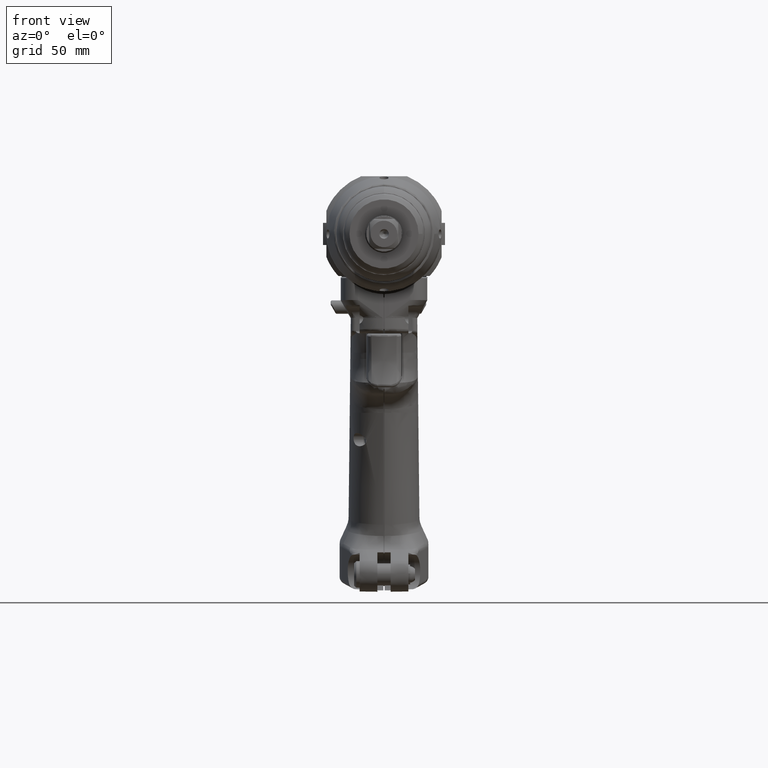
[diagram: clean part render]
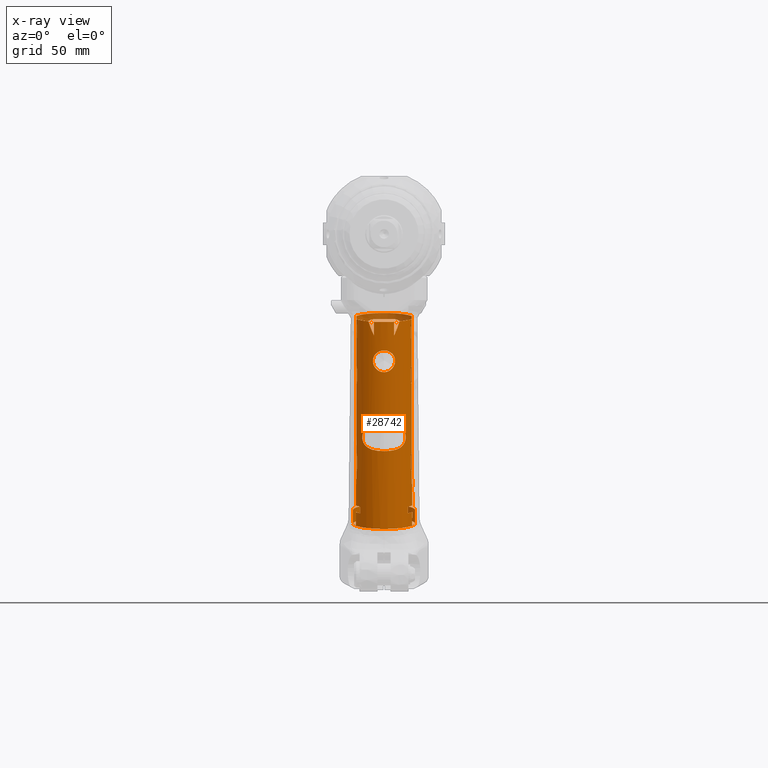
[diagram: x-ray — body ghosted, one internal face saturated and labeled with its STEP entity id]
A machine part, front view, then the same camera in x-ray: the body is ghosted and one INTERNAL B-rep face — a face not visible from any outside direction — is saturated and labeled: STEP entity #28742.
In plain terms, the highlighted cylindrical surface (bore or boss wall) has radius 14 mm, axis along (0, -0.1736, 0.9848).
Its self-contained STEP definition (entity closure, byte-faithful):
#595=CYLINDRICAL_SURFACE('',#31186,14.);
#750=FACE_BOUND('',#8319,.T.);
#751=FACE_BOUND('',#8320,.T.);
#752=FACE_BOUND('',#8321,.T.);
#753=FACE_BOUND('',#8322,.T.);
#754=FACE_BOUND('',#8323,.T.);
#842=ELLIPSE('',#29390,80.6227867640089,14.);
#843=ELLIPSE('',#29392,80.6227867640089,14.);
#895=ELLIPSE('',#30704,14.2159725664004,14.);
#915=ELLIPSE('',#30989,1307.94673454624,14.);
#917=ELLIPSE('',#31036,1307.94673454634,14.);
#918=ELLIPSE('',#31045,14.2159725664004,14.);
#1315=LINE('',#43569,#3042);
#1316=LINE('',#43572,#3043);
#1328=LINE('',#43652,#3055);
#1334=LINE('',#43695,#3061);
#1337=LINE('',#43717,#3064);
#1339=LINE('',#43741,#3066);
#1343=LINE('',#43762,#3070);
#1345=LINE('',#43767,#3072);
#2245=LINE('',#64658,#3972);
#2481=LINE('',#77590,#4208);
#2482=LINE('',#77593,#4209);
#2489=LINE('',#77607,#4216);
#2509=LINE('',#80558,#4236);
#2515=LINE('',#80591,#4242);
#2545=LINE('',#81390,#4272);
#2547=LINE('',#81410,#4274);
#2549=LINE('',#81414,#4276);
#2550=LINE('',#81417,#4277);
#2551=LINE('',#81421,#4278);
#2552=LINE('',#81435,#4279);
#2566=LINE('',#81554,#4293);
#2568=LINE('',#81616,#4295);
#2581=LINE('',#81654,#4308);
#2644=LINE('',#81825,#4371);
#2646=LINE('',#81836,#4373);
#2648=LINE('',#81847,#4375);
#2650=LINE('',#81858,#4377);
#2658=LINE('',#81927,#4385);
#2670=LINE('',#81956,#4397);
#2673=LINE('',#81964,#4400);
#2677=LINE('',#82024,#4404);
#3042=VECTOR('',#32485,10.);
#3043=VECTOR('',#32488,10.);
#3055=VECTOR('',#32518,10.);
#3061=VECTOR('',#32538,10.);
#3064=VECTOR('',#32549,10.);
#3066=VECTOR('',#32559,10.);
#3070=VECTOR('',#32575,10.);
#3072=VECTOR('',#32579,10.);
#3972=VECTOR('',#36169,10.);
#4208=VECTOR('',#36885,10.);
#4209=VECTOR('',#36888,10.);
#4216=VECTOR('',#36897,10.);
#4236=VECTOR('',#36985,10.);
#4242=VECTOR('',#37011,10.);
#4272=VECTOR('',#37111,10.);
#4274=VECTOR('',#37117,10.);
#4276=VECTOR('',#37121,10.);
#4277=VECTOR('',#37124,10.);
#4278=VECTOR('',#37129,10.);
#4279=VECTOR('',#37134,10.);
#4293=VECTOR('',#37222,10.);
#4295=VECTOR('',#37234,10.);
#4308=VECTOR('',#37267,10.);
#4371=VECTOR('',#37460,10.);
#4373=VECTOR('',#37466,10.);
#4375=VECTOR('',#37472,10.);
#4377=VECTOR('',#37478,10.);
#4385=VECTOR('',#37504,10.);
#4397=VECTOR('',#37538,10.);
#4400=VECTOR('',#37549,10.);
#4404=VECTOR('',#37575,14.);
#6626=FACE_OUTER_BOUND('',#8318,.T.);
#8318=EDGE_LOOP('',(#26034,#26035,#26036,#26037,#26038,#26039,#26040,#26041,
#26042,#26043,#26044,#26045,#26046,#26047,#26048,#26049,#26050,#26051,#26052,
#26053,#26054,#26055,#26056,#26057,#26058,#26059,#26060,#26061,#26062,#26063,
#26064,#26065,#26066,#26067,#26068,#26069,#26070,#26071,#26072,#26073,#26074,
#26075,#26076,#26077,#26078,#26079,#26080,#26081,#26082,#26083,#26084,#26085,
#26086,#26087,#26088,#26089,#26090,#26091,#26092,#26093,#26094,#26095));
#8319=EDGE_LOOP('',(#26096,#26097,#26098));
#8320=EDGE_LOOP('',(#26099,#26100,#26101));
#8321=EDGE_LOOP('',(#26102,#26103,#26104));
#8322=EDGE_LOOP('',(#26105,#26106,#26107,#26108,#26109,#26110,#26111,#26112,
#26113,#26114,#26115,#26116,#26117,#26118));
#8323=EDGE_LOOP('',(#26119,#26120));
#8718=CIRCLE('',#29318,14.);
#8721=CIRCLE('',#29321,14.);
#8724=CIRCLE('',#29337,14.);
#8729=CIRCLE('',#29351,14.);
#8732=CIRCLE('',#29354,14.);
#8733=CIRCLE('',#29358,14.);
#8735=CIRCLE('',#29360,14.);
#9379=CIRCLE('',#30743,14.);
#9487=CIRCLE('',#31042,14.);
#9488=CIRCLE('',#31043,14.);
#9494=CIRCLE('',#31053,14.);
#9495=CIRCLE('',#31056,14.);
#9496=CIRCLE('',#31058,14.);
#9498=CIRCLE('',#31060,14.);
#9499=CIRCLE('',#31062,14.);
#9500=CIRCLE('',#31070,14.);
#9501=CIRCLE('',#31071,14.);
#9531=CIRCLE('',#31160,14.);
#9534=CIRCLE('',#31166,14.);
#9536=CIRCLE('',#31180,14.);
#9539=CIRCLE('',#31187,14.);
#9540=CIRCLE('',#31188,14.);
#9939=B_SPLINE_CURVE_WITH_KNOTS('',3,(#43657,#43658,#43659,#43660,#43661,
#43662,#43663,#43664,#43665,#43666,#43667,#43668),.UNSPECIFIED.,.F.,.F.,
(4,2,2,2,2,4),(0.,0.117790636076639,0.235581272153278,0.471162544306556,
0.732880241368151,0.994597938429746),.UNSPECIFIED.);
#9940=B_SPLINE_CURVE_WITH_KNOTS('',3,(#43677,#43678,#43679,#43680,#43681,
#43682,#43683,#43684,#43685,#43686,#43687,#43688),.UNSPECIFIED.,.F.,.F.,
(4,2,2,2,2,4),(0.91314296596152,1.17486066302311,1.43657836008471,1.67215963223799,
1.78995026831463,1.90774090439127),.UNSPECIFIED.);
#9941=B_SPLINE_CURVE_WITH_KNOTS('',3,(#43701,#43702,#43703,#43704,#43705,
#43706,#43707,#43708,#43709,#43710,#43711,#43712),.UNSPECIFIED.,.F.,.F.,
(4,2,2,2,2,4),(1.20746760293836,1.22829797726819,1.49642263018717,1.63048495664667,
1.76454728310616,1.7801839118611),.UNSPECIFIED.);
#9943=B_SPLINE_CURVE_WITH_KNOTS('',3,(#43726,#43727,#43728,#43729,#43730,
#43731,#43732,#43733,#43734,#43735,#43736,#43737),.UNSPECIFIED.,.F.,.F.,
(4,2,2,2,2,4),(1.76452489799409,1.76454728310616,1.89860960956565,2.03267193602514,
2.30079658894413,2.32952728826919),.UNSPECIFIED.);
#9947=B_SPLINE_CURVE_WITH_KNOTS('',3,(#43843,#43844,#43845,#43846,#43847,
#43848),.UNSPECIFIED.,.F.,.F.,(4,2,4),(0.616418481665025,0.709386714511794,
0.8077858581293),.UNSPECIFIED.);
#9949=B_SPLINE_CURVE_WITH_KNOTS('',3,(#43900,#43901,#43902,#43903,#43904,
#43905),.UNSPECIFIED.,.F.,.F.,(4,2,4),(0.616418481665024,0.709386714511794,
0.8077858581293),.UNSPECIFIED.);
#9951=B_SPLINE_CURVE_WITH_KNOTS('',3,(#43968,#43969,#43970,#43971,#43972,
#43973),.UNSPECIFIED.,.F.,.F.,(4,2,4),(0.616418481665025,0.709386714511794,
0.8077858581293),.UNSPECIFIED.);
#9953=B_SPLINE_CURVE_WITH_KNOTS('',3,(#44025,#44026,#44027,#44028,#44029,
#44030),.UNSPECIFIED.,.F.,.F.,(4,2,4),(0.616418481665024,0.709386714511795,
0.807785858129301),.UNSPECIFIED.);
#10819=B_SPLINE_CURVE_WITH_KNOTS('',3,(#81229,#81230,#81231,#81232),
 .UNSPECIFIED.,.F.,.F.,(4,4),(-0.778407003510723,-0.232794562126459),
 .UNSPECIFIED.);
#10826=B_SPLINE_CURVE_WITH_KNOTS('',3,(#81264,#81265,#81266,#81267),
 .UNSPECIFIED.,.F.,.F.,(4,4),(-1.84905711408067,-1.03584290327026),
 .UNSPECIFIED.);
#10830=B_SPLINE_CURVE_WITH_KNOTS('',3,(#81353,#81354,#81355,#81356),
 .UNSPECIFIED.,.F.,.F.,(4,4),(-4.91391071940147,-4.27129700051075),
 .UNSPECIFIED.);
#10833=B_SPLINE_CURVE_WITH_KNOTS('',3,(#81366,#81367,#81368,#81369),
 .UNSPECIFIED.,.F.,.F.,(4,4),(-3.96809511036053,-3.01031959406691),
 .UNSPECIFIED.);
#10841=B_SPLINE_CURVE_WITH_KNOTS('',3,(#81493,#81494,#81495,#81496,#81497,
#81498,#81499,#81500,#81501,#81502,#81503,#81504),.UNSPECIFIED.,.F.,.F.,
(4,2,2,2,2,4),(1.98092512101142,2.0255315404679,2.14332217654454,2.37890344869782,
2.64062114575941,2.90233884282101),.UNSPECIFIED.);
#10843=B_SPLINE_CURVE_WITH_KNOTS('',3,(#81511,#81512,#81513,#81514,#81515,
#81516,#81517,#81518,#81519,#81520,#81521,#81522),.UNSPECIFIED.,.F.,.F.,
(4,2,2,2,2,4),(-0.994597938429744,-0.732880241368149,-0.471162544306555,
-0.235581272153277,-0.117790636076638,-0.0731842166201558),
 .UNSPECIFIED.);
#10844=B_SPLINE_CURVE_WITH_KNOTS('',3,(#81525,#81526,#81527,#81528,#81529,
#81530,#81531,#81532,#81533,#81534,#81535,#81536),.UNSPECIFIED.,.F.,.F.,
(4,2,2,2,2,4),(5.27800522056352,5.29364184931847,5.42770417577796,5.56176650223745,
5.82989115515644,5.85072152948626),.UNSPECIFIED.);
#10845=B_SPLINE_CURVE_WITH_KNOTS('',3,(#81541,#81542,#81543,#81544,#81545,
#81546,#81547,#81548,#81549,#81550,#81551,#81552),.UNSPECIFIED.,.F.,.F.,
(4,2,2,2,2,4),(4.72866184415544,4.7573925434805,5.02551719639948,5.15957952285898,
5.29364184931847,5.29366423443054),.UNSPECIFIED.);
#10846=B_SPLINE_CURVE_WITH_KNOTS('',3,(#81558,#81559,#81560,#81561,#81562,
#81563,#81564,#81565,#81566,#81567,#81568,#81569,#81570,#81571,#81572,#81573,
#81574,#81575,#81576,#81577,#81578,#81579,#81580,#81581,#81582,#81583),
 .UNSPECIFIED.,.F.,.F.,(4,2,2,2,2,2,2,2,2,2,2,2,4),(0.,0.253032681761414,
0.506065363522828,0.759098045284242,1.01213072704566,1.17554582261084,1.33896091817603,
1.50237601374122,1.66579110930641,1.91882379106782,2.17185647282923,2.42488915459065,
2.67792183635206),.UNSPECIFIED.);
#10847=B_SPLINE_CURVE_WITH_KNOTS('',3,(#81584,#81585,#81586,#81587,#81588,
#81589,#81590,#81591,#81592,#81593,#81594,#81595,#81596,#81597,#81598,#81599,
#81600,#81601,#81602,#81603,#81604,#81605,#81606,#81607,#81608,#81609),
 .UNSPECIFIED.,.F.,.F.,(4,2,2,2,2,2,2,2,2,2,2,2,4),(2.67792183635206,2.93095451811348,
3.18398719987489,3.4370198816363,3.69005256339772,3.8534676589629,4.01688275452809,
4.18029785009328,4.34371294565847,4.59674562741988,4.8497783091813,5.10281099094271,
5.35584367270412),.UNSPECIFIED.);
#10848=B_SPLINE_CURVE_WITH_KNOTS('',3,(#81827,#81828,#81829,#81830,#81831,
#81832),.UNSPECIFIED.,.F.,.F.,(4,2,4),(-0.8077858581293,-0.709386714511794,
-0.616418481665024),.UNSPECIFIED.);
#10849=B_SPLINE_CURVE_WITH_KNOTS('',3,(#81838,#81839,#81840,#81841,#81842,
#81843),.UNSPECIFIED.,.F.,.F.,(4,2,4),(-0.8077858581293,-0.709386714511794,
-0.616418481665024),.UNSPECIFIED.);
#10850=B_SPLINE_CURVE_WITH_KNOTS('',3,(#81849,#81850,#81851,#81852,#81853,
#81854),.UNSPECIFIED.,.F.,.F.,(4,2,4),(-0.807785858129301,-0.709386714511794,
-0.616418481665026),.UNSPECIFIED.);
#10851=B_SPLINE_CURVE_WITH_KNOTS('',3,(#81860,#81861,#81862,#81863,#81864,
#81865),.UNSPECIFIED.,.F.,.F.,(4,2,4),(-0.8077858581293,-0.709386714511794,
-0.616418481665025),.UNSPECIFIED.);
#10852=B_SPLINE_CURVE_WITH_KNOTS('',3,(#81877,#81878,#81879,#81880,#81881,
#81882,#81883,#81884,#81885,#81886,#81887,#81888,#81889,#81890,#81891,#81892,
#81893,#81894),.UNSPECIFIED.,.F.,.F.,(4,2,2,2,2,2,2,2,4),(0.760700418564751,
0.950816403437252,1.14093238830975,1.33116661271963,1.5214008371295,1.71163506153938,
1.90186928594925,2.09198527082175,2.28210125569425),.UNSPECIFIED.);
#10853=B_SPLINE_CURVE_WITH_KNOTS('',3,(#81896,#81897,#81898,#81899,#81900,
#81901,#81902,#81903,#81904,#81905),.UNSPECIFIED.,.F.,.F.,(4,2,2,2,4),(3.042801674259,
3.23303589866888,3.42327012307875,3.61338610795125,3.80350209282376),
 .UNSPECIFIED.);
#10854=B_SPLINE_CURVE_WITH_KNOTS('',3,(#81907,#81908,#81909,#81910,#81911,
#81912,#81913,#81914,#81915,#81916),.UNSPECIFIED.,.F.,.F.,(4,2,2,2,4),(2.28210125569425,
2.47221724056675,2.66233322543925,2.85256744984913,3.042801674259),
 .UNSPECIFIED.);
#10855=B_SPLINE_CURVE_WITH_KNOTS('',3,(#81975,#81976,#81977,#81978,#81979,
#81980,#81981,#81982,#81983,#81984,#81985,#81986,#81987,#81988,#81989,#81990,
#81991,#81992,#81993,#81994,#81995,#81996),.UNSPECIFIED.,.F.,.F.,(4,3,3,
3,3,3,3,4),(-11.7930840924093,-9.02253239048523,-7.150582832633,-6.25198068856113,
-4.9811785703801,-3.81488700957991,-2.76543482911509,-1.78976279005122),
 .UNSPECIFIED.);
#10856=B_SPLINE_CURVE_WITH_KNOTS('',3,(#81998,#81999,#82000,#82001,#82002,
#82003,#82004,#82005,#82006,#82007,#82008,#82009,#82010,#82011,#82012,#82013,
#82014,#82015,#82016,#82017,#82018,#82019),.UNSPECIFIED.,.F.,.F.,(4,3,3,
3,3,3,3,4),(-11.7929740677217,-9.03500070874492,-7.15951516663594,-6.27702734976815,
-5.00346819634342,-3.83477874781762,-2.78349847468705,-1.79226813751866),
 .UNSPECIFIED.);
#11497=VERTEX_POINT('',#43539);
#11498=VERTEX_POINT('',#43541);
#11501=VERTEX_POINT('',#43547);
#11502=VERTEX_POINT('',#43552);
#11505=VERTEX_POINT('',#43567);
#11506=VERTEX_POINT('',#43571);
#11517=VERTEX_POINT('',#43642);
#11520=VERTEX_POINT('',#43650);
#11521=VERTEX_POINT('',#43654);
#11522=VERTEX_POINT('',#43656);
#11523=VERTEX_POINT('',#43671);
#11524=VERTEX_POINT('',#43675);
#11526=VERTEX_POINT('',#43694);
#11527=VERTEX_POINT('',#43698);
#11528=VERTEX_POINT('',#43700);
#11529=VERTEX_POINT('',#43715);
#11531=VERTEX_POINT('',#43721);
#11532=VERTEX_POINT('',#43743);
#11533=VERTEX_POINT('',#43745);
#11536=VERTEX_POINT('',#43754);
#11537=VERTEX_POINT('',#43756);
#11538=VERTEX_POINT('',#43760);
#11539=VERTEX_POINT('',#43764);
#11540=VERTEX_POINT('',#43766);
#11541=VERTEX_POINT('',#43770);
#11542=VERTEX_POINT('',#43772);
#11544=VERTEX_POINT('',#43779);
#11551=VERTEX_POINT('',#43840);
#11552=VERTEX_POINT('',#43842);
#11559=VERTEX_POINT('',#43897);
#11560=VERTEX_POINT('',#43899);
#11567=VERTEX_POINT('',#43965);
#11568=VERTEX_POINT('',#43967);
#11575=VERTEX_POINT('',#44022);
#11576=VERTEX_POINT('',#44024);
#11577=VERTEX_POINT('',#44033);
#11578=VERTEX_POINT('',#44035);
#11583=VERTEX_POINT('',#44047);
#11584=VERTEX_POINT('',#44049);
#12983=VERTEX_POINT('',#64656);
#12984=VERTEX_POINT('',#64657);
#12987=VERTEX_POINT('',#64666);
#13011=VERTEX_POINT('',#65773);
#13012=VERTEX_POINT('',#65774);
#13207=VERTEX_POINT('',#71179);
#13208=VERTEX_POINT('',#71187);
#13335=VERTEX_POINT('',#77589);
#13336=VERTEX_POINT('',#77592);
#13341=VERTEX_POINT('',#77604);
#13342=VERTEX_POINT('',#77606);
#13377=VERTEX_POINT('',#80556);
#13381=VERTEX_POINT('',#80589);
#13382=VERTEX_POINT('',#80590);
#13383=VERTEX_POINT('',#80601);
#13418=VERTEX_POINT('',#81228);
#13422=VERTEX_POINT('',#81258);
#13423=VERTEX_POINT('',#81263);
#13428=VERTEX_POINT('',#81352);
#13432=VERTEX_POINT('',#81389);
#13434=VERTEX_POINT('',#81409);
#13435=VERTEX_POINT('',#81413);
#13436=VERTEX_POINT('',#81416);
#13437=VERTEX_POINT('',#81420);
#13438=VERTEX_POINT('',#81433);
#13440=VERTEX_POINT('',#81450);
#13442=VERTEX_POINT('',#81463);
#13447=VERTEX_POINT('',#81475);
#13448=VERTEX_POINT('',#81477);
#13449=VERTEX_POINT('',#81481);
#13450=VERTEX_POINT('',#81487);
#13451=VERTEX_POINT('',#81489);
#13452=VERTEX_POINT('',#81506);
#13453=VERTEX_POINT('',#81524);
#13454=VERTEX_POINT('',#81539);
#13455=VERTEX_POINT('',#81556);
#13456=VERTEX_POINT('',#81557);
#13457=VERTEX_POINT('',#81611);
#13472=VERTEX_POINT('',#81652);
#13515=VERTEX_POINT('',#81823);
#13516=VERTEX_POINT('',#81834);
#13517=VERTEX_POINT('',#81845);
#13518=VERTEX_POINT('',#81856);
#13521=VERTEX_POINT('',#81875);
#13522=VERTEX_POINT('',#81876);
#13523=VERTEX_POINT('',#81895);
#14491=EDGE_CURVE('',#11498,#11497,#8718,.T.);
#14495=EDGE_CURVE('',#11502,#11501,#8721,.T.);
#14501=EDGE_CURVE('',#11497,#11505,#1315,.T.);
#14502=EDGE_CURVE('',#11506,#11502,#1316,.T.);
#14523=EDGE_CURVE('',#11517,#11520,#1328,.T.);
#14525=EDGE_CURVE('',#11522,#11521,#9939,.T.);
#14528=EDGE_CURVE('',#11521,#11523,#8724,.T.);
#14530=EDGE_CURVE('',#11523,#11524,#9940,.T.);
#14533=EDGE_CURVE('',#11526,#11522,#1334,.T.);
#14536=EDGE_CURVE('',#11528,#11527,#9941,.T.);
#14539=EDGE_CURVE('',#11527,#11529,#1337,.T.);
#14542=EDGE_CURVE('',#11529,#11531,#9943,.T.);
#14544=EDGE_CURVE('',#11524,#11528,#1339,.T.);
#14546=EDGE_CURVE('',#11533,#11532,#8729,.T.);
#14550=EDGE_CURVE('',#11537,#11536,#8732,.T.);
#14553=EDGE_CURVE('',#11532,#11538,#1343,.T.);
#14555=EDGE_CURVE('',#11540,#11539,#1345,.T.);
#14558=EDGE_CURVE('',#11542,#11541,#8733,.T.);
#14561=EDGE_CURVE('',#11539,#11544,#8735,.T.);
#14574=EDGE_CURVE('',#11552,#11551,#9947,.T.);
#14588=EDGE_CURVE('',#11560,#11559,#9949,.T.);
#14602=EDGE_CURVE('',#11568,#11567,#9951,.T.);
#14616=EDGE_CURVE('',#11576,#11575,#9953,.T.);
#14619=EDGE_CURVE('',#11578,#11577,#842,.T.);
#14626=EDGE_CURVE('',#11584,#11583,#843,.T.);
#16791=EDGE_CURVE('',#12983,#12984,#2245,.T.);
#16796=EDGE_CURVE('',#12987,#12983,#895,.T.);
#16852=EDGE_CURVE('',#13011,#13012,#9379,.T.);
#17398=EDGE_CURVE('',#11560,#13335,#2481,.T.);
#17400=EDGE_CURVE('',#11576,#13336,#2482,.T.);
#17408=EDGE_CURVE('',#13341,#13342,#2489,.T.);
#17492=EDGE_CURVE('',#13377,#11544,#2509,.T.);
#17501=EDGE_CURVE('',#13381,#13382,#2515,.T.);
#17505=EDGE_CURVE('',#13383,#13381,#915,.T.);
#17566=EDGE_CURVE('',#11542,#13418,#10819,.T.);
#17573=EDGE_CURVE('',#13422,#13423,#10826,.T.);
#17580=EDGE_CURVE('',#13012,#13428,#10830,.T.);
#17583=EDGE_CURVE('',#11533,#11501,#10833,.T.);
#17588=EDGE_CURVE('',#11517,#13432,#2545,.T.);
#17592=EDGE_CURVE('',#11552,#13434,#2547,.T.);
#17595=EDGE_CURVE('',#11506,#13435,#2549,.T.);
#17597=EDGE_CURVE('',#11568,#13436,#2550,.T.);
#17599=EDGE_CURVE('',#13437,#11505,#2551,.T.);
#17602=EDGE_CURVE('',#13438,#13011,#2552,.T.);
#17606=EDGE_CURVE('',#12984,#12987,#917,.T.);
#17610=EDGE_CURVE('',#13418,#13440,#9487,.T.);
#17611=EDGE_CURVE('',#13440,#13377,#9488,.T.);
#17612=EDGE_CURVE('',#13382,#13383,#918,.T.);
#17618=EDGE_CURVE('',#13442,#13442,#9494,.T.);
#17624=EDGE_CURVE('',#13447,#13448,#9495,.T.);
#17627=EDGE_CURVE('',#13422,#13449,#9496,.T.);
#17629=EDGE_CURVE('',#11520,#13208,#9498,.T.);
#17631=EDGE_CURVE('',#13451,#13450,#9499,.T.);
#17633=EDGE_CURVE('',#11531,#13451,#10841,.T.);
#17635=EDGE_CURVE('',#13450,#13452,#10843,.T.);
#17636=EDGE_CURVE('',#13453,#11526,#10844,.T.);
#17639=EDGE_CURVE('',#13452,#13454,#10845,.T.);
#17640=EDGE_CURVE('',#13454,#13453,#2566,.T.);
#17641=EDGE_CURVE('',#13455,#13456,#10846,.T.);
#17642=EDGE_CURVE('',#13456,#13455,#10847,.T.);
#17644=EDGE_CURVE('',#13438,#13457,#9500,.T.);
#17645=EDGE_CURVE('',#11538,#13428,#9501,.T.);
#17646=EDGE_CURVE('',#13457,#11537,#2568,.T.);
#17665=EDGE_CURVE('',#11541,#13472,#2581,.T.);
#17750=EDGE_CURVE('',#11551,#13515,#2644,.T.);
#17751=EDGE_CURVE('',#13515,#13436,#10848,.T.);
#17753=EDGE_CURVE('',#11559,#13516,#2646,.T.);
#17754=EDGE_CURVE('',#13516,#13342,#10849,.T.);
#17756=EDGE_CURVE('',#11567,#13517,#2648,.T.);
#17757=EDGE_CURVE('',#13517,#13435,#10850,.T.);
#17759=EDGE_CURVE('',#11575,#13518,#2650,.T.);
#17760=EDGE_CURVE('',#13518,#13335,#10851,.T.);
#17765=EDGE_CURVE('',#13521,#13522,#10852,.T.);
#17766=EDGE_CURVE('',#13523,#13521,#10853,.T.);
#17768=EDGE_CURVE('',#13522,#13523,#10854,.T.);
#17769=EDGE_CURVE('',#11578,#13341,#9531,.T.);
#17774=EDGE_CURVE('',#11577,#13448,#2658,.T.);
#17777=EDGE_CURVE('',#13434,#11583,#9534,.T.);
#17789=EDGE_CURVE('',#13449,#13336,#2670,.T.);
#17792=EDGE_CURVE('',#13447,#11584,#2673,.T.);
#17794=EDGE_CURVE('',#13432,#13437,#9536,.T.);
#17798=EDGE_CURVE('',#11498,#11536,#10855,.T.);
#17799=EDGE_CURVE('',#13208,#13207,#10856,.T.);
#17801=EDGE_CURVE('',#13472,#13423,#9539,.T.);
#17802=EDGE_CURVE('',#13207,#11540,#9540,.T.);
#17803=EDGE_CURVE('',#13440,#13442,#2677,.T.);
#26034=ORIENTED_EDGE('',*,*,#17566,.F.);
#26035=ORIENTED_EDGE('',*,*,#14558,.T.);
#26036=ORIENTED_EDGE('',*,*,#17665,.T.);
#26037=ORIENTED_EDGE('',*,*,#17801,.T.);
#26038=ORIENTED_EDGE('',*,*,#17573,.F.);
#26039=ORIENTED_EDGE('',*,*,#17627,.T.);
#26040=ORIENTED_EDGE('',*,*,#17789,.T.);
#26041=ORIENTED_EDGE('',*,*,#17400,.F.);
#26042=ORIENTED_EDGE('',*,*,#14616,.T.);
#26043=ORIENTED_EDGE('',*,*,#17759,.T.);
#26044=ORIENTED_EDGE('',*,*,#17760,.T.);
#26045=ORIENTED_EDGE('',*,*,#17398,.F.);
#26046=ORIENTED_EDGE('',*,*,#14588,.T.);
#26047=ORIENTED_EDGE('',*,*,#17753,.T.);
#26048=ORIENTED_EDGE('',*,*,#17754,.T.);
#26049=ORIENTED_EDGE('',*,*,#17408,.F.);
#26050=ORIENTED_EDGE('',*,*,#17769,.F.);
#26051=ORIENTED_EDGE('',*,*,#14619,.T.);
#26052=ORIENTED_EDGE('',*,*,#17774,.T.);
#26053=ORIENTED_EDGE('',*,*,#17624,.F.);
#26054=ORIENTED_EDGE('',*,*,#17792,.T.);
#26055=ORIENTED_EDGE('',*,*,#14626,.T.);
#26056=ORIENTED_EDGE('',*,*,#17777,.F.);
#26057=ORIENTED_EDGE('',*,*,#17592,.F.);
#26058=ORIENTED_EDGE('',*,*,#14574,.T.);
#26059=ORIENTED_EDGE('',*,*,#17750,.T.);
#26060=ORIENTED_EDGE('',*,*,#17751,.T.);
#26061=ORIENTED_EDGE('',*,*,#17597,.F.);
#26062=ORIENTED_EDGE('',*,*,#14602,.T.);
#26063=ORIENTED_EDGE('',*,*,#17756,.T.);
#26064=ORIENTED_EDGE('',*,*,#17757,.T.);
#26065=ORIENTED_EDGE('',*,*,#17595,.F.);
#26066=ORIENTED_EDGE('',*,*,#14502,.T.);
#26067=ORIENTED_EDGE('',*,*,#14495,.T.);
#26068=ORIENTED_EDGE('',*,*,#17583,.F.);
#26069=ORIENTED_EDGE('',*,*,#14546,.T.);
#26070=ORIENTED_EDGE('',*,*,#14553,.T.);
#26071=ORIENTED_EDGE('',*,*,#17645,.T.);
#26072=ORIENTED_EDGE('',*,*,#17580,.F.);
#26073=ORIENTED_EDGE('',*,*,#16852,.F.);
#26074=ORIENTED_EDGE('',*,*,#17602,.F.);
#26075=ORIENTED_EDGE('',*,*,#17644,.T.);
#26076=ORIENTED_EDGE('',*,*,#17646,.T.);
#26077=ORIENTED_EDGE('',*,*,#14550,.T.);
#26078=ORIENTED_EDGE('',*,*,#17798,.F.);
#26079=ORIENTED_EDGE('',*,*,#14491,.T.);
#26080=ORIENTED_EDGE('',*,*,#14501,.T.);
#26081=ORIENTED_EDGE('',*,*,#17599,.F.);
#26082=ORIENTED_EDGE('',*,*,#17794,.F.);
#26083=ORIENTED_EDGE('',*,*,#17588,.F.);
#26084=ORIENTED_EDGE('',*,*,#14523,.T.);
#26085=ORIENTED_EDGE('',*,*,#17629,.T.);
#26086=ORIENTED_EDGE('',*,*,#17799,.T.);
#26087=ORIENTED_EDGE('',*,*,#17802,.T.);
#26088=ORIENTED_EDGE('',*,*,#14555,.T.);
#26089=ORIENTED_EDGE('',*,*,#14561,.T.);
#26090=ORIENTED_EDGE('',*,*,#17492,.F.);
#26091=ORIENTED_EDGE('',*,*,#17611,.F.);
#26092=ORIENTED_EDGE('',*,*,#17803,.T.);
#26093=ORIENTED_EDGE('',*,*,#17618,.F.);
#26094=ORIENTED_EDGE('',*,*,#17803,.F.);
#26095=ORIENTED_EDGE('',*,*,#17610,.F.);
#26096=ORIENTED_EDGE('',*,*,#17505,.F.);
#26097=ORIENTED_EDGE('',*,*,#17612,.F.);
#26098=ORIENTED_EDGE('',*,*,#17501,.F.);
#26099=ORIENTED_EDGE('',*,*,#16796,.F.);
#26100=ORIENTED_EDGE('',*,*,#17606,.F.);
#26101=ORIENTED_EDGE('',*,*,#16791,.F.);
#26102=ORIENTED_EDGE('',*,*,#17765,.T.);
#26103=ORIENTED_EDGE('',*,*,#17768,.T.);
#26104=ORIENTED_EDGE('',*,*,#17766,.T.);
#26105=ORIENTED_EDGE('',*,*,#17636,.T.);
#26106=ORIENTED_EDGE('',*,*,#14533,.T.);
#26107=ORIENTED_EDGE('',*,*,#14525,.T.);
#26108=ORIENTED_EDGE('',*,*,#14528,.T.);
#26109=ORIENTED_EDGE('',*,*,#14530,.T.);
#26110=ORIENTED_EDGE('',*,*,#14544,.T.);
#26111=ORIENTED_EDGE('',*,*,#14536,.T.);
#26112=ORIENTED_EDGE('',*,*,#14539,.T.);
#26113=ORIENTED_EDGE('',*,*,#14542,.T.);
#26114=ORIENTED_EDGE('',*,*,#17633,.T.);
#26115=ORIENTED_EDGE('',*,*,#17631,.T.);
#26116=ORIENTED_EDGE('',*,*,#17635,.T.);
#26117=ORIENTED_EDGE('',*,*,#17639,.T.);
#26118=ORIENTED_EDGE('',*,*,#17640,.T.);
#26119=ORIENTED_EDGE('',*,*,#17642,.T.);
#26120=ORIENTED_EDGE('',*,*,#17641,.T.);
#28742=ADVANCED_FACE('',(#6626,#750,#751,#752,#753,#754),#595,.T.);
#29318=AXIS2_PLACEMENT_3D('',#43542,#32468,#32469);
#29321=AXIS2_PLACEMENT_3D('',#43553,#32474,#32475);
#29337=AXIS2_PLACEMENT_3D('',#43673,#32526,#32527);
#29351=AXIS2_PLACEMENT_3D('',#43746,#32563,#32564);
#29354=AXIS2_PLACEMENT_3D('',#43757,#32569,#32570);
#29358=AXIS2_PLACEMENT_3D('',#43773,#32584,#32585);
#29360=AXIS2_PLACEMENT_3D('',#43781,#32588,#32589);
#29390=AXIS2_PLACEMENT_3D('',#44036,#32685,#32686);
#29392=AXIS2_PLACEMENT_3D('',#44050,#32695,#32696);
#30704=AXIS2_PLACEMENT_3D('',#64667,#36177,#36178);
#30743=AXIS2_PLACEMENT_3D('',#65775,#36275,#36276);
#30989=AXIS2_PLACEMENT_3D('',#80602,#37016,#37017);
#31036=AXIS2_PLACEMENT_3D('',#81442,#37146,#37147);
#31042=AXIS2_PLACEMENT_3D('',#81451,#37159,#37160);
#31043=AXIS2_PLACEMENT_3D('',#81452,#37161,#37162);
#31045=AXIS2_PLACEMENT_3D('',#81454,#37165,#37166);
#31053=AXIS2_PLACEMENT_3D('',#81464,#37181,#37182);
#31056=AXIS2_PLACEMENT_3D('',#81478,#37192,#37193);
#31058=AXIS2_PLACEMENT_3D('',#81483,#37198,#37199);
#31060=AXIS2_PLACEMENT_3D('',#81485,#37202,#37203);
#31062=AXIS2_PLACEMENT_3D('',#81490,#37207,#37208);
#31070=AXIS2_PLACEMENT_3D('',#81613,#37228,#37229);
#31071=AXIS2_PLACEMENT_3D('',#81614,#37230,#37231);
#31160=AXIS2_PLACEMENT_3D('',#81918,#37495,#37496);
#31166=AXIS2_PLACEMENT_3D('',#81933,#37512,#37513);
#31180=AXIS2_PLACEMENT_3D('',#81968,#37555,#37556);
#31186=AXIS2_PLACEMENT_3D('',#82021,#37569,#37570);
#31187=AXIS2_PLACEMENT_3D('',#82022,#37571,#37572);
#31188=AXIS2_PLACEMENT_3D('',#82023,#37573,#37574);
#32468=DIRECTION('center_axis',(-1.83832767193663E-15,0.17364817766693,
-0.984807753012208));
#32469=DIRECTION('ref_axis',(-1.,1.04213381530722E-15,2.05044314859774E-15));
#32474=DIRECTION('center_axis',(-1.83832767193663E-15,0.17364817766693,
-0.984807753012208));
#32475=DIRECTION('ref_axis',(-1.,1.04213381530722E-15,2.05044314859774E-15));
#32485=DIRECTION('',(1.83832767193663E-15,-0.17364817766693,0.984807753012208));
#32488=DIRECTION('',(-1.83832767193663E-15,0.17364817766693,-0.984807753012208));
#32518=DIRECTION('',(-1.83832767193663E-15,0.17364817766693,-0.984807753012208));
#32526=DIRECTION('center_axis',(1.83832767193663E-15,-0.17364817766693,
0.984807753012208));
#32527=DIRECTION('ref_axis',(-1.,1.04213381530722E-15,2.05044314859774E-15));
#32538=DIRECTION('',(1.83832767193663E-15,-0.17364817766693,0.984807753012208));
#32549=DIRECTION('',(-2.15443506340367E-5,0.173611435668946,-0.984814230675415));
#32559=DIRECTION('',(-1.83832767193663E-15,0.17364817766693,-0.984807753012208));
#32563=DIRECTION('center_axis',(1.83832767193663E-15,-0.17364817766693,
0.984807753012208));
#32564=DIRECTION('ref_axis',(-1.,1.04213381530722E-15,2.05044314859774E-15));
#32569=DIRECTION('center_axis',(1.83832767193663E-15,-0.17364817766693,
0.984807753012208));
#32570=DIRECTION('ref_axis',(-1.,1.04213381530722E-15,2.05044314859774E-15));
#32575=DIRECTION('',(-1.83832767193663E-15,0.17364817766693,-0.984807753012208));
#32579=DIRECTION('',(-1.83832767193663E-15,0.17364817766693,-0.984807753012208));
#32584=DIRECTION('center_axis',(-1.83832767193663E-15,0.17364817766693,
-0.984807753012208));
#32585=DIRECTION('ref_axis',(-1.,1.04213381530722E-15,2.05044314859774E-15));
#32588=DIRECTION('center_axis',(-1.83832767193663E-15,0.17364817766693,
-0.984807753012208));
#32589=DIRECTION('ref_axis',(-1.,1.04213381530722E-15,2.05044314859774E-15));
#32685=DIRECTION('center_axis',(1.04213381530721E-15,1.,-4.27435864480685E-15));
#32686=DIRECTION('ref_axis',(-2.05044314859774E-15,-4.26888168280782E-15,
-1.));
#32695=DIRECTION('center_axis',(1.04213381530721E-15,1.,-4.27435864480685E-15));
#32696=DIRECTION('ref_axis',(-2.05044314859774E-15,-4.26888168280782E-15,
-1.));
#36169=DIRECTION('',(-1.83832767193663E-15,0.17364817766693,-0.984807753012208));
#36177=DIRECTION('center_axis',(-1.69297047966218E-15,-3.60822483003178E-16,
-1.));
#36178=DIRECTION('ref_axis',(-1.04213381530722E-15,-1.,3.70960153611551E-16));
#36275=DIRECTION('center_axis',(4.8993659842501E-16,-0.173648177666749,
0.98480775301224));
#36276=DIRECTION('ref_axis',(-1.,1.04213381530722E-15,2.05044314859774E-15));
#36885=DIRECTION('',(-1.83832767193663E-15,0.17364817766693,-0.984807753012208));
#36888=DIRECTION('',(-1.83832767193663E-15,0.17364817766693,-0.984807753012208));
#36897=DIRECTION('',(-1.83832767193663E-15,0.17364817766693,-0.984807753012208));
#36985=DIRECTION('',(1.83832767193663E-15,-0.17364817766693,0.984807753012208));
#37011=DIRECTION('',(1.83832767193663E-15,-0.17364817766693,0.984807753012208));
#37016=DIRECTION('center_axis',(0.999940931510034,-3.05828635659858E-15,
0.0108689231685946));
#37017=DIRECTION('ref_axis',(-0.010703780736798,-0.173658126073144,0.984747827784709));
#37111=DIRECTION('',(1.83832767193663E-15,-0.17364817766693,0.984807753012208));
#37117=DIRECTION('',(1.83832767193663E-15,-0.17364817766693,0.984807753012208));
#37121=DIRECTION('',(1.83832767193663E-15,-0.17364817766693,0.984807753012208));
#37124=DIRECTION('',(1.83832767193663E-15,-0.17364817766693,0.984807753012208));
#37129=DIRECTION('',(-1.83832767193663E-15,0.17364817766693,-0.984807753012208));
#37134=DIRECTION('',(-1.83832767193663E-15,0.17364817766693,-0.984807753012208));
#37146=DIRECTION('center_axis',(-0.999940931510034,-7.39944973319819E-16,
0.0108689231685979));
#37147=DIRECTION('ref_axis',(-0.0107037807368008,0.173658126073144,-0.984747827784709));
#37159=DIRECTION('center_axis',(5.71054161112036E-18,-0.173648177666722,
0.984807753012245));
#37160=DIRECTION('ref_axis',(-1.,1.04213381530722E-15,2.05044314859774E-15));
#37161=DIRECTION('center_axis',(5.71054161112036E-18,-0.173648177666722,
0.984807753012245));
#37162=DIRECTION('ref_axis',(-1.,1.04213381530722E-15,2.05044314859774E-15));
#37165=DIRECTION('center_axis',(-1.6887076532456E-15,3.68227857356751E-17,
-1.));
#37166=DIRECTION('ref_axis',(-1.04213381530722E-15,-1.,-3.90484372222685E-17));
#37181=DIRECTION('center_axis',(-1.83832767193663E-15,0.17364817766693,
-0.984807753012208));
#37182=DIRECTION('ref_axis',(-1.,1.04213381530722E-15,2.05044314859774E-15));
#37192=DIRECTION('center_axis',(1.83832767193663E-15,-0.17364817766693,
0.984807753012208));
#37193=DIRECTION('ref_axis',(-1.,1.04213381530722E-15,2.05044314859774E-15));
#37198=DIRECTION('center_axis',(-1.83832767193663E-15,0.17364817766693,
-0.984807753012208));
#37199=DIRECTION('ref_axis',(-1.,1.04213381530722E-15,2.05044314859774E-15));
#37202=DIRECTION('center_axis',(-1.83832767193663E-15,0.17364817766693,
-0.984807753012208));
#37203=DIRECTION('ref_axis',(-1.,1.04213381530722E-15,2.05044314859774E-15));
#37207=DIRECTION('center_axis',(-1.83832767193663E-15,0.17364817766693,
-0.984807753012208));
#37208=DIRECTION('ref_axis',(-1.,1.04213381530722E-15,2.05044314859774E-15));
#37222=DIRECTION('',(-2.15443506303599E-5,-0.173611435668946,0.984814230675415));
#37228=DIRECTION('center_axis',(-1.83832767193663E-15,0.17364817766693,
-0.984807753012208));
#37229=DIRECTION('ref_axis',(-1.,1.04213381530722E-15,2.05044314859774E-15));
#37230=DIRECTION('center_axis',(-1.83832767193663E-15,0.17364817766693,
-0.984807753012208));
#37231=DIRECTION('ref_axis',(-1.,1.04213381530722E-15,2.05044314859774E-15));
#37234=DIRECTION('',(1.83832767193663E-15,-0.17364817766693,0.984807753012208));
#37267=DIRECTION('',(1.83832767193663E-15,-0.17364817766693,0.984807753012208));
#37460=DIRECTION('',(-1.83832767193663E-15,0.17364817766693,-0.984807753012208));
#37466=DIRECTION('',(1.83832767193663E-15,-0.17364817766693,0.984807753012208));
#37472=DIRECTION('',(-1.83832767193663E-15,0.17364817766693,-0.984807753012208));
#37478=DIRECTION('',(1.83832767193663E-15,-0.17364817766693,0.984807753012208));
#37495=DIRECTION('center_axis',(1.83832767193663E-15,-0.17364817766693,
0.984807753012208));
#37496=DIRECTION('ref_axis',(-1.,1.04213381530722E-15,2.05044314859774E-15));
#37504=DIRECTION('',(1.83832767193663E-15,-0.17364817766693,0.984807753012208));
#37512=DIRECTION('center_axis',(1.83832767193663E-15,-0.17364817766693,
0.984807753012208));
#37513=DIRECTION('ref_axis',(-1.,1.04213381530722E-15,2.05044314859774E-15));
#37538=DIRECTION('',(1.83832767193663E-15,-0.17364817766693,0.984807753012208));
#37549=DIRECTION('',(-1.83832767193663E-15,0.17364817766693,-0.984807753012208));
#37555=DIRECTION('center_axis',(1.83832767193664E-15,-0.173648177666928,
0.984807753012208));
#37556=DIRECTION('ref_axis',(1.54316944212205E-15,0.984807753012208,0.173648177666928));
#37569=DIRECTION('center_axis',(1.83832767193663E-15,-0.17364817766693,
0.984807753012208));
#37570=DIRECTION('ref_axis',(-1.,1.04213381530722E-15,2.05044314859774E-15));
#37571=DIRECTION('center_axis',(1.83832767193663E-15,-0.17364817766693,
0.984807753012208));
#37572=DIRECTION('ref_axis',(-1.,1.04213381530722E-15,2.05044314859774E-15));
#37573=DIRECTION('center_axis',(1.83832767193663E-15,-0.17364817766693,
0.984807753012208));
#37574=DIRECTION('ref_axis',(-1.,1.04213381530722E-15,2.05044314859774E-15));
#37575=DIRECTION('',(-1.83832767193663E-15,0.17364817766693,-0.984807753012208));
#43539=CARTESIAN_POINT('',(-12.5000000000003,63.5214091079245,-110.605539041611));
#43541=CARTESIAN_POINT('',(-12.7733854583008,62.9577107404836,-110.704934273627));
#43542=CARTESIAN_POINT('Origin',(-3.41726436439659E-13,57.3124324742013,
-111.700349144725));
#43547=CARTESIAN_POINT('',(-12.7102334972579,51.5321927810452,-112.71956135759));
#43552=CARTESIAN_POINT('',(-12.5000000000003,51.1034558404782,-112.795159247839));
#43553=CARTESIAN_POINT('Origin',(-3.41726436439659E-13,57.3124324742013,
-111.700349144725));
#43567=CARTESIAN_POINT('',(-12.5000000000003,62.8963960224554,-107.060913692967));
#43569=CARTESIAN_POINT('',(-12.5000000000004,66.8728189368962,-129.612328674747));
#43571=CARTESIAN_POINT('',(-12.5000000000003,50.4784427550087,-109.250533899193));
#43572=CARTESIAN_POINT('',(-12.5000000000004,54.4548656694499,-131.801948880974));
#43642=CARTESIAN_POINT('',(12.4999999999997,62.8963960224554,-107.060913692967));
#43650=CARTESIAN_POINT('',(12.4999999999997,63.5214091079244,-110.605539041611));
#43652=CARTESIAN_POINT('',(12.4999999999996,66.8728189368962,-129.612328674747));
#43654=CARTESIAN_POINT('',(4.49999999999982,57.8654325295284,-38.4921242588637));
#43656=CARTESIAN_POINT('',(10.4999999999998,54.9711001610591,-45.0950328178771));
#43657=CARTESIAN_POINT('Ctrl Pts',(10.4999999999998,54.9711001610591,-45.0950328178771));
#43658=CARTESIAN_POINT('Ctrl Pts',(10.4999999999998,54.9029197300559,-44.7083623790754));
#43659=CARTESIAN_POINT('Ctrl Pts',(10.4609809584832,54.8783826100507,-44.3114517996873));
#43660=CARTESIAN_POINT('Ctrl Pts',(10.3076637640427,54.9117527892354,-43.524256690617));
#43661=CARTESIAN_POINT('Ctrl Pts',(10.193454340394,54.96922236636,-43.1339363878479));
#43662=CARTESIAN_POINT('Ctrl Pts',(9.75585829809065,55.228929768924,-42.009655788559));
#43663=CARTESIAN_POINT('Ctrl Pts',(9.33264155708114,55.5172540351298,-41.3214786640963));
#43664=CARTESIAN_POINT('Ctrl Pts',(8.34028298716298,56.1339301910984,-40.1455609910263));
#43665=CARTESIAN_POINT('Ctrl Pts',(7.67536893378826,56.5182881433308,-39.5856659495536));
#43666=CARTESIAN_POINT('Ctrl Pts',(6.16913391544779,57.246673557551,-38.7823286620406));
#43667=CARTESIAN_POINT('Ctrl Pts',(5.32609780192033,57.5892807968497,-38.5408172601043));
#43668=CARTESIAN_POINT('Ctrl Pts',(4.49999999999981,57.8654325295283,-38.4921242588637));
#43671=CARTESIAN_POINT('',(-4.50000000000019,57.8654325295284,-38.4921242588637));
#43673=CARTESIAN_POINT('Origin',(-2.09366844060221E-13,44.8097636821823,
-40.7941909278458));
#43675=CARTESIAN_POINT('',(-10.5000000000002,54.9711001610591,-45.0950328178771));
#43677=CARTESIAN_POINT('Ctrl Pts',(-4.50000000000019,57.8654325295284,-38.4921242588637));
#43678=CARTESIAN_POINT('Ctrl Pts',(-5.32609780192071,57.5892807968497,-38.5408172601043));
#43679=CARTESIAN_POINT('Ctrl Pts',(-6.16913391544816,57.246673557551,-38.7823286620406));
#43680=CARTESIAN_POINT('Ctrl Pts',(-7.67536893378864,56.5182881433308,-39.5856659495536));
#43681=CARTESIAN_POINT('Ctrl Pts',(-8.34028298716337,56.1339301910984,-40.1455609910263));
#43682=CARTESIAN_POINT('Ctrl Pts',(-9.33264155708153,55.5172540351298,-41.3214786640962));
#43683=CARTESIAN_POINT('Ctrl Pts',(-9.75585829809105,55.2289297689241,-42.009655788559));
#43684=CARTESIAN_POINT('Ctrl Pts',(-10.1934543403944,54.96922236636,-43.1339363878479));
#43685=CARTESIAN_POINT('Ctrl Pts',(-10.3076637640431,54.9117527892354,-43.524256690617));
#43686=CARTESIAN_POINT('Ctrl Pts',(-10.4609809584836,54.8783826100507,-44.3114517996873));
#43687=CARTESIAN_POINT('Ctrl Pts',(-10.5000000000002,54.902919730056,-44.7083623790754));
#43688=CARTESIAN_POINT('Ctrl Pts',(-10.5000000000002,54.9711001610591,-45.0950328178771));
#43694=CARTESIAN_POINT('',(10.4999999999998,55.7192041697771,-49.3377414817029));
#43695=CARTESIAN_POINT('',(10.4999999999996,69.7832897160483,-129.099134149818));
#43698=CARTESIAN_POINT('',(-12.123174091725,54.3373632401939,-54.5047165374347));
#43700=CARTESIAN_POINT('',(-10.5000000000002,55.7192041697772,-49.3377414817029));
#43701=CARTESIAN_POINT('Ctrl Pts',(-10.5000000000002,55.7192041697772,-49.3377414817029));
#43702=CARTESIAN_POINT('Ctrl Pts',(-10.5391598102973,55.681621754236,-49.3803079922404));
#43703=CARTESIAN_POINT('Ctrl Pts',(-10.5777993180603,55.6442369428392,-49.4238681300796));
#43704=CARTESIAN_POINT('Ctrl Pts',(-11.1064778069446,55.1289025897903,-50.0424567401756));
#43705=CARTESIAN_POINT('Ctrl Pts',(-11.5036996793858,54.6910882393411,-50.806938487648));
#43706=CARTESIAN_POINT('Ctrl Pts',(-11.8816685918732,54.3244921747361,-52.0934210884539));
#43707=CARTESIAN_POINT('Ctrl Pts',(-11.9741837705915,54.2484821083282,-52.5447432782826));
#43708=CARTESIAN_POINT('Ctrl Pts',(-12.0954607013949,54.2015006537429,-53.4533835966986));
#43709=CARTESIAN_POINT('Ctrl Pts',(-12.1243556529824,54.2305416893268,-53.9106845844132));
#43710=CARTESIAN_POINT('Ctrl Pts',(-12.1243556529824,54.3171915252323,-54.4021002234565));
#43711=CARTESIAN_POINT('Ctrl Pts',(-12.1239635107101,54.3269316452634,-54.4534270009857));
#43712=CARTESIAN_POINT('Ctrl Pts',(-12.123174091725,54.3373632401939,-54.5047165374347));
#43715=CARTESIAN_POINT('',(-12.1243556505716,63.8587515226023,-108.514975943286));
#43717=CARTESIAN_POINT('',(-12.1237648711483,59.0980573813981,-81.5098462403602));
#43721=CARTESIAN_POINT('',(-10.4552203713309,66.9559920558811,-112.773746294381));
#43726=CARTESIAN_POINT('Ctrl Pts',(-12.1243556505716,63.8587515226023,-108.514975943286));
#43727=CARTESIAN_POINT('Ctrl Pts',(-12.1243556521788,63.8587644770563,-108.515049427677));
#43728=CARTESIAN_POINT('Ctrl Pts',(-12.1243556529825,63.8587774328399,-108.515122911592));
#43729=CARTESIAN_POINT('Ctrl Pts',(-12.1243556529825,63.9363893188979,-108.955281789979));
#43730=CARTESIAN_POINT('Ctrl Pts',(-12.095460701395,64.0655058214208,-109.394936772765));
#43731=CARTESIAN_POINT('Ctrl Pts',(-11.9741837705916,64.4204272395445,-110.232710771098));
#43732=CARTESIAN_POINT('Ctrl Pts',(-11.8816685918733,64.6462146181048,-110.63081792867));
#43733=CARTESIAN_POINT('Ctrl Pts',(-11.5036996793859,65.4307051983368,-111.714332896858));
#43734=CARTESIAN_POINT('Ctrl Pts',(-11.1064778069447,66.1035842695685,-112.282969426793));
#43735=CARTESIAN_POINT('Ctrl Pts',(-10.5633447092586,66.8184345061272,-112.699071739666));
#43736=CARTESIAN_POINT('Ctrl Pts',(-10.509774750686,66.8873675542389,-112.737344077879));
#43737=CARTESIAN_POINT('Ctrl Pts',(-10.4552203713309,66.9559920558811,-112.773746294381));
#43741=CARTESIAN_POINT('',(-10.5000000000004,69.7832897160483,-129.099134149818));
#43743=CARTESIAN_POINT('',(-10.8000000000004,50.2758302325345,-123.095358091302));
#43745=CARTESIAN_POINT('',(-12.7300261713316,53.311072892585,-122.560162917337));
#43746=CARTESIAN_POINT('Origin',(-3.60109713159025E-13,59.0489142508706,
-121.548426674847));
#43754=CARTESIAN_POINT('',(-12.6188902452224,65.0217653967438,-120.495251855883));
#43756=CARTESIAN_POINT('',(-10.8000000000003,67.8219982692068,-120.001495258392));
#43757=CARTESIAN_POINT('Origin',(-3.60109713159025E-13,59.0489142508706,
-121.548426674847));
#43760=CARTESIAN_POINT('',(-10.8000000000004,50.7967747655353,-126.049781350338));
#43762=CARTESIAN_POINT('',(-10.8000000000004,51.8907582848369,-132.254070194315));
#43764=CARTESIAN_POINT('',(10.7999999999996,68.3429428022075,-122.955918517429));
#43766=CARTESIAN_POINT('',(10.7999999999997,67.8219982692067,-120.001495258392));
#43767=CARTESIAN_POINT('',(10.7999999999996,69.4369263215092,-129.160207361405));
#43770=CARTESIAN_POINT('',(10.7999999999996,50.7967747655353,-126.049781350338));
#43772=CARTESIAN_POINT('',(12.7276137529839,53.8268294388846,-125.515500958405));
#43773=CARTESIAN_POINT('Origin',(-3.65624696174835E-13,59.5698587838714,
-124.502849933883));
#43779=CARTESIAN_POINT('',(13.9999999744429,59.5706918567404,-124.50270304066));
#43781=CARTESIAN_POINT('Origin',(-3.65624696174835E-13,59.5698587838714,
-124.502849933883));
#43840=CARTESIAN_POINT('',(-12.1243556529824,41.302248875602,-61.2134793552523));
#43842=CARTESIAN_POINT('',(-12.5000000000002,41.6796188383364,-59.349923786551));
#43843=CARTESIAN_POINT('Ctrl Pts',(-12.5000000000003,41.6796188383363,-59.349923786551));
#43844=CARTESIAN_POINT('Ctrl Pts',(-12.3985940325123,41.5191989891296,-59.5979407691458));
#43845=CARTESIAN_POINT('Ctrl Pts',(-12.3025146750482,41.3910698582274,-59.893861818946));
#43846=CARTESIAN_POINT('Ctrl Pts',(-12.1630600880475,41.2502020199666,-60.5387992043964));
#43847=CARTESIAN_POINT('Ctrl Pts',(-12.1243556529824,41.2452927690248,-60.8904652235047));
#43848=CARTESIAN_POINT('Ctrl Pts',(-12.1243556529824,41.302248875602,-61.2134793552523));
#43897=CARTESIAN_POINT('',(12.1243556529819,42.1704897639366,-66.1375181203134));
#43899=CARTESIAN_POINT('',(12.4999999999997,43.1624750759269,-67.7596194079054));
#43900=CARTESIAN_POINT('Ctrl Pts',(12.4999999999997,43.1624750759269,-67.7596194079054));
#43901=CARTESIAN_POINT('Ctrl Pts',(12.3985940325118,42.9269029234654,-67.5814264993493));
#43902=CARTESIAN_POINT('Ctrl Pts',(12.3025146750476,42.7052899647832,-67.3471744162323));
#43903=CARTESIAN_POINT('Ctrl Pts',(12.163060088047,42.3523359196557,-66.7893111524876));
#43904=CARTESIAN_POINT('Ctrl Pts',(12.1243556529819,42.2274458705139,-66.460532252061));
#43905=CARTESIAN_POINT('Ctrl Pts',(12.1243556529819,42.1704897639366,-66.1375181203134));
#43965=CARTESIAN_POINT('',(-12.1243556529825,48.2481759822792,-100.605789475741));
#43967=CARTESIAN_POINT('',(-12.5000000000003,48.6255459450136,-98.7422339070393));
#43968=CARTESIAN_POINT('Ctrl Pts',(-12.5000000000003,48.6255459450136,-98.7422339070393));
#43969=CARTESIAN_POINT('Ctrl Pts',(-12.3985940325124,48.4651260958068,-98.9902508896342));
#43970=CARTESIAN_POINT('Ctrl Pts',(-12.3025146750482,48.3369969649046,-99.2861719394343));
#43971=CARTESIAN_POINT('Ctrl Pts',(-12.1630600880476,48.1961291266438,-99.9311093248847));
#43972=CARTESIAN_POINT('Ctrl Pts',(-12.1243556529825,48.191219875702,-100.282775343993));
#43973=CARTESIAN_POINT('Ctrl Pts',(-12.1243556529825,48.2481759822792,-100.605789475741));
#44022=CARTESIAN_POINT('',(12.1243556529818,49.1164168706139,-105.529828240802));
#44024=CARTESIAN_POINT('',(12.4999999999997,50.1084021826042,-107.151929528394));
#44025=CARTESIAN_POINT('Ctrl Pts',(12.4999999999997,50.1084021826042,-107.151929528394));
#44026=CARTESIAN_POINT('Ctrl Pts',(12.3985940325118,49.8728300301427,-106.973736619838));
#44027=CARTESIAN_POINT('Ctrl Pts',(12.3025146750476,49.6512170714604,-106.739484536721));
#44028=CARTESIAN_POINT('Ctrl Pts',(12.1630600880469,49.2982630263329,-106.181621272976));
#44029=CARTESIAN_POINT('Ctrl Pts',(12.1243556529818,49.1733729771911,-105.852842372549));
#44030=CARTESIAN_POINT('Ctrl Pts',(12.1243556529818,49.1164168706139,-105.529828240802));
#44033=CARTESIAN_POINT('',(4.49999999999977,32.2380337985003,-45.84081184326));
#44035=CARTESIAN_POINT('',(6.95797016781989,32.2380337985003,-39.4569329589177));
#44036=CARTESIAN_POINT('Origin',(-7.62761359411112E-14,32.2380337985006,
30.5036322026231));
#44047=CARTESIAN_POINT('',(-6.95797016782033,32.2380337985003,-39.4569329589177));
#44049=CARTESIAN_POINT('',(-4.50000000000023,32.2380337985003,-45.84081184326));
#44050=CARTESIAN_POINT('Origin',(-7.62761359411112E-14,32.2380337985006,
30.5036322026231));
#64656=CARTESIAN_POINT('',(-12.1253322752241,37.7397850222175,-40.999999998784));
#64657=CARTESIAN_POINT('',(-12.1253322752141,39.2468293657738,-49.546873185852));
#64658=CARTESIAN_POINT('',(-12.1253322751881,53.7718541612175,-131.92238223801));
#64666=CARTESIAN_POINT('',(-12.032431479703,37.5787909881388,-40.9999999988346));
#64667=CARTESIAN_POINT('Origin',(-2.09751025144316E-13,44.8460533742571,
-40.9999999987492));
#65773=CARTESIAN_POINT('',(-13.9999999744433,60.6123672210395,-130.41033755779));
#65774=CARTESIAN_POINT('',(-12.7064700638979,54.8232752832024,-131.431110660229));
#65775=CARTESIAN_POINT('Origin',(-3.76652399782404E-13,60.61153414161,-130.41048445217));
#71179=CARTESIAN_POINT('',(12.6189649660268,65.0216122485272,-120.495278860054));
#71187=CARTESIAN_POINT('',(12.7733857767016,62.9577100415654,-110.704934396866));
#77589=CARTESIAN_POINT('',(12.4999999999997,48.6255459450135,-98.7422339070393));
#77590=CARTESIAN_POINT('',(12.5000000010116,54.4548656714258,-131.801948880626));
#77592=CARTESIAN_POINT('',(12.4999999999997,50.4784427550089,-109.250533899194));
#77593=CARTESIAN_POINT('',(12.5000000010116,54.4548656714258,-131.801948880626));
#77604=CARTESIAN_POINT('',(12.4999999999998,37.9930184266249,-38.442173895417));
#77606=CARTESIAN_POINT('',(12.4999999999998,41.6796188383363,-59.349923786551));
#77607=CARTESIAN_POINT('',(12.5000000010116,54.4548656714258,-131.801948880626));
#80556=CARTESIAN_POINT('',(13.9999999744427,60.6123672152506,-130.410337541181));
#80558=CARTESIAN_POINT('',(13.9999999744431,60.6646753735775,-130.706991885071));
#80589=CARTESIAN_POINT('',(12.1253322751711,39.246829365003,-49.5468731819058));
#80590=CARTESIAN_POINT('',(12.1253322751792,37.7397850221407,-40.9999999987917));
#80591=CARTESIAN_POINT('',(12.1253322751873,53.7718541612175,-131.92238223801));
#80601=CARTESIAN_POINT('',(12.032431479703,37.5787909881431,-40.9999999988544));
#80602=CARTESIAN_POINT('Origin',(1.85664087191074E-12,-150.345039458126,
1065.98369613286));
#81228=CARTESIAN_POINT('',(12.7064700639016,54.8232752832149,-131.431110660227));
#81229=CARTESIAN_POINT('Ctrl Pts',(12.7276137529839,53.8268294388846,-125.515500958405));
#81230=CARTESIAN_POINT('Ctrl Pts',(12.7242778300497,54.1816228628936,-127.569562361337));
#81231=CARTESIAN_POINT('Ctrl Pts',(12.7173989739792,54.5153325525529,-129.548619236431));
#81232=CARTESIAN_POINT('Ctrl Pts',(12.7064700591146,54.8232752690669,-131.431110662514));
#81258=CARTESIAN_POINT('',(12.7102334972577,51.5321927810462,-112.71956135759));
#81263=CARTESIAN_POINT('',(12.7300261713314,53.3110728925862,-122.560162917337));
#81264=CARTESIAN_POINT('Ctrl Pts',(12.7102334972577,51.5321927810462,-112.71956135759));
#81265=CARTESIAN_POINT('Ctrl Pts',(12.7230508902977,52.155798942543,-116.096366487838));
#81266=CARTESIAN_POINT('Ctrl Pts',(12.730191885787,52.754272075894,-119.400303490111));
#81267=CARTESIAN_POINT('Ctrl Pts',(12.7300261713314,53.3110728925862,-122.560162917337));
#81352=CARTESIAN_POINT('',(-12.7276137529841,53.8268294388833,-125.515500958405));
#81353=CARTESIAN_POINT('Ctrl Pts',(-12.7064700591147,54.8232752690654,-131.431110662514));
#81354=CARTESIAN_POINT('Ctrl Pts',(-12.7173989089719,54.5153343842572,-129.548630433872));
#81355=CARTESIAN_POINT('Ctrl Pts',(-12.7242778192443,54.1816240121177,-127.569569014729));
#81356=CARTESIAN_POINT('Ctrl Pts',(-12.7276137529841,53.8268294388833,-125.515500958405));
#81366=CARTESIAN_POINT('Ctrl Pts',(-12.7300261713316,53.311072892585,-122.560162917337));
#81367=CARTESIAN_POINT('Ctrl Pts',(-12.7301918843877,52.7542767783113,-119.400330176461));
#81368=CARTESIAN_POINT('Ctrl Pts',(-12.7230509884106,52.1558037160303,-116.096392336108));
#81369=CARTESIAN_POINT('Ctrl Pts',(-12.7102334972579,51.5321927810452,-112.71956135759));
#81389=CARTESIAN_POINT('',(12.4999999999998,50.5498902362048,-37.0403998915991));
#81390=CARTESIAN_POINT('',(12.5000000010116,66.8728189349202,-129.612328675095));
#81409=CARTESIAN_POINT('',(-12.5000000000002,37.9930184266249,-38.4421738954169));
#81410=CARTESIAN_POINT('',(-12.4999999999985,54.4548656694462,-131.801948880975));
#81413=CARTESIAN_POINT('',(-12.5000000000003,50.1084021826042,-107.151929528394));
#81414=CARTESIAN_POINT('',(-12.4999999999985,54.4548656694462,-131.801948880975));
#81416=CARTESIAN_POINT('',(-12.5000000000003,43.162475075927,-67.7596194079053));
#81417=CARTESIAN_POINT('',(-12.4999999999985,54.4548656694462,-131.801948880975));
#81420=CARTESIAN_POINT('',(-12.5000000000002,50.5498902362048,-37.040399891599));
#81421=CARTESIAN_POINT('',(-12.4999999999985,66.8728189368999,-129.612328674746));
#81433=CARTESIAN_POINT('',(-13.9999999744435,59.5706918596878,-124.50270304014));
#81435=CARTESIAN_POINT('',(-13.9999999744436,60.664675376607,-130.706991884537));
#81442=CARTESIAN_POINT('Origin',(1.85664087191086E-12,-150.345039458137,
1065.98369613292));
#81450=CARTESIAN_POINT('',(13.9999999999996,60.61153414161,-130.41048445217));
#81451=CARTESIAN_POINT('Origin',(-3.76652399782404E-13,60.61153414161,-130.41048445217));
#81452=CARTESIAN_POINT('Origin',(-3.76652399782404E-13,60.61153414161,-130.41048445217));
#81454=CARTESIAN_POINT('Origin',(-2.09751025144315E-13,44.846053374257,
-40.9999999987483));
#81463=CARTESIAN_POINT('',(13.9999999999996,60.6638423031731,-130.70713877786));
#81464=CARTESIAN_POINT('Origin',(-3.77206160508036E-13,60.6638423031731,
-130.70713877786));
#81475=CARTESIAN_POINT('',(-4.50000000000022,31.146326213002,-39.6494304612851));
#81477=CARTESIAN_POINT('',(4.49999999999978,31.146326213002,-39.6494304612851));
#81478=CARTESIAN_POINT('Origin',(-2.02932697208443E-13,44.2019950603481,
-37.347363792303));
#81481=CARTESIAN_POINT('',(12.4999999999997,51.1034558404782,-112.795159247839));
#81483=CARTESIAN_POINT('Origin',(-3.41726436439659E-13,57.3124324742013,
-111.700349144725));
#81485=CARTESIAN_POINT('Origin',(-3.41726436439659E-13,57.3124324742013,
-111.700349144725));
#81487=CARTESIAN_POINT('',(4.49999999999965,71.7572867428828,-117.27674449984));
#81489=CARTESIAN_POINT('',(-4.50000000000034,71.7572867428828,-117.27674449984));
#81490=CARTESIAN_POINT('Origin',(-3.56433057815152E-13,58.7016178955368,
-119.578811168822));
#81493=CARTESIAN_POINT('Ctrl Pts',(-10.4552203713309,66.9559920558811,-112.773746294381));
#81494=CARTESIAN_POINT('Ctrl Pts',(-10.4370404718506,67.0017911887665,-112.915922172398));
#81495=CARTESIAN_POINT('Ctrl Pts',(-10.4133523899351,67.0534314951107,-113.056248288938));
#81496=CARTESIAN_POINT('Ctrl Pts',(-10.3076637640433,67.2606450312227,-113.558304755017));
#81497=CARTESIAN_POINT('Ctrl Pts',(-10.1934543403945,67.4481461746624,-113.905430110267));
#81498=CARTESIAN_POINT('Ctrl Pts',(-9.75585829809118,68.0767179161223,-114.873083130064));
#81499=CARTESIAN_POINT('Ctrl Pts',(-9.33264155708168,68.5830245402115,-115.421145388864));
#81500=CARTESIAN_POINT('Ctrl Pts',(-8.34028298716352,69.5646981044725,-116.315230881649));
#81501=CARTESIAN_POINT('Ctrl Pts',(-7.67536893378879,70.1173718182575,-116.709901958625));
#81502=CARTESIAN_POINT('Ctrl Pts',(-6.16913391544832,71.0765877513023,-117.215669595935));
#81503=CARTESIAN_POINT('Ctrl Pts',(-5.32609780192087,71.4811350102041,-117.325437501081));
#81504=CARTESIAN_POINT('Ctrl Pts',(-4.50000000000035,71.7572867428828,-117.27674449984));
#81506=CARTESIAN_POINT('',(10.4552203713302,66.9559920558811,-112.773746294381));
#81511=CARTESIAN_POINT('Ctrl Pts',(4.49999999999966,71.7572867428828,-117.27674449984));
#81512=CARTESIAN_POINT('Ctrl Pts',(5.32609780192018,71.4811350102041,-117.325437501081));
#81513=CARTESIAN_POINT('Ctrl Pts',(6.16913391544763,71.0765877513023,-117.215669595935));
#81514=CARTESIAN_POINT('Ctrl Pts',(7.6753689337881,70.1173718182574,-116.709901958625));
#81515=CARTESIAN_POINT('Ctrl Pts',(8.34028298716282,69.5646981044725,-116.315230881649));
#81516=CARTESIAN_POINT('Ctrl Pts',(9.33264155708099,68.5830245402115,-115.421145388864));
#81517=CARTESIAN_POINT('Ctrl Pts',(9.7558582980905,68.0767179161223,-114.873083130064));
#81518=CARTESIAN_POINT('Ctrl Pts',(10.1934543403939,67.4481461746623,-113.905430110267));
#81519=CARTESIAN_POINT('Ctrl Pts',(10.3076637640426,67.2606450312227,-113.558304755018));
#81520=CARTESIAN_POINT('Ctrl Pts',(10.4133523899344,67.0534314951107,-113.056248288938));
#81521=CARTESIAN_POINT('Ctrl Pts',(10.4370404718499,67.0017911887665,-112.915922172398));
#81522=CARTESIAN_POINT('Ctrl Pts',(10.4552203713302,66.9559920558811,-112.773746294381));
#81524=CARTESIAN_POINT('',(12.1231740917246,54.3373632401939,-54.5047165374347));
#81525=CARTESIAN_POINT('Ctrl Pts',(12.1231740917245,54.3373632401939,-54.5047165374347));
#81526=CARTESIAN_POINT('Ctrl Pts',(12.1239635107096,54.3269316452634,-54.4534270009857));
#81527=CARTESIAN_POINT('Ctrl Pts',(12.1243556529819,54.3171915252322,-54.4021002234565));
#81528=CARTESIAN_POINT('Ctrl Pts',(12.1243556529819,54.2305416893268,-53.9106845844132));
#81529=CARTESIAN_POINT('Ctrl Pts',(12.0954607013944,54.2015006537429,-53.4533835966986));
#81530=CARTESIAN_POINT('Ctrl Pts',(11.974183770591,54.2484821083281,-52.5447432782827));
#81531=CARTESIAN_POINT('Ctrl Pts',(11.8816685918727,54.3244921747361,-52.093421088454));
#81532=CARTESIAN_POINT('Ctrl Pts',(11.5036996793854,54.6910882393411,-50.806938487648));
#81533=CARTESIAN_POINT('Ctrl Pts',(11.1064778069441,55.1289025897903,-50.0424567401756));
#81534=CARTESIAN_POINT('Ctrl Pts',(10.5777993180598,55.6442369428392,-49.4238681300797));
#81535=CARTESIAN_POINT('Ctrl Pts',(10.5391598102969,55.681621754236,-49.3803079922404));
#81536=CARTESIAN_POINT('Ctrl Pts',(10.4999999999998,55.7192041697771,-49.337741481703));
#81539=CARTESIAN_POINT('',(12.1243556505709,63.8587515226023,-108.514975943286));
#81541=CARTESIAN_POINT('Ctrl Pts',(10.4552203713302,66.9559920558811,-112.773746294381));
#81542=CARTESIAN_POINT('Ctrl Pts',(10.5097747506854,66.8873675542389,-112.737344077879));
#81543=CARTESIAN_POINT('Ctrl Pts',(10.563344709258,66.8184345061272,-112.699071739666));
#81544=CARTESIAN_POINT('Ctrl Pts',(11.106477806944,66.1035842695685,-112.282969426793));
#81545=CARTESIAN_POINT('Ctrl Pts',(11.5036996793853,65.4307051983368,-111.714332896858));
#81546=CARTESIAN_POINT('Ctrl Pts',(11.8816685918726,64.6462146181047,-110.63081792867));
#81547=CARTESIAN_POINT('Ctrl Pts',(11.9741837705909,64.4204272395445,-110.232710771098));
#81548=CARTESIAN_POINT('Ctrl Pts',(12.0954607013943,64.0655058214207,-109.394936772765));
#81549=CARTESIAN_POINT('Ctrl Pts',(12.1243556529818,63.9363893188978,-108.955281789979));
#81550=CARTESIAN_POINT('Ctrl Pts',(12.1243556529818,63.8587774328398,-108.515122911592));
#81551=CARTESIAN_POINT('Ctrl Pts',(12.1243556521782,63.8587644770563,-108.515049427677));
#81552=CARTESIAN_POINT('Ctrl Pts',(12.1243556505709,63.8587515226023,-108.514975943286));
#81554=CARTESIAN_POINT('',(12.1237648711477,59.0980573813981,-81.5098462403602));
#81556=CARTESIAN_POINT('',(-3.31035379840169E-13,40.6871664551097,-98.0365669883534));
#81557=CARTESIAN_POINT('',(-3.1023707643426E-13,38.7225615916061,-86.8947391432331));
#81558=CARTESIAN_POINT('Ctrl Pts',(-3.31956684362922E-13,40.6871664551097,
-98.0365669883533));
#81559=CARTESIAN_POINT('Ctrl Pts',(-0.843442272538378,40.6871664551097,
-98.0365669883533));
#81560=CARTESIAN_POINT('Ctrl Pts',(-1.71211335446801,40.7595659369881,-97.9978163846198));
#81561=CARTESIAN_POINT('Ctrl Pts',(-3.41781944170891,41.0504434770533,-97.8168303096405));
#81562=CARTESIAN_POINT('Ctrl Pts',(-4.25482195397674,41.2689396818586,-97.6743178799854));
#81563=CARTESIAN_POINT('Ctrl Pts',(-5.82077141964502,41.8048307348949,-97.2354505174397));
#81564=CARTESIAN_POINT('Ctrl Pts',(-6.54983794170408,42.1222020674195,-96.9386895296347));
#81565=CARTESIAN_POINT('Ctrl Pts',(-7.83858367052131,42.7630933580091,-96.1277449963799));
#81566=CARTESIAN_POINT('Ctrl Pts',(-8.39935186143124,43.0879043941133,-95.6163156145012));
#81567=CARTESIAN_POINT('Ctrl Pts',(-9.13834043313569,43.5062739247478,-94.5182040757135));
#81568=CARTESIAN_POINT('Ctrl Pts',(-9.38907163142012,43.6433817489857,-93.9973900463458));
#81569=CARTESIAN_POINT('Ctrl Pts',(-9.71816663075643,43.7604219054263,-92.8919141620775));
#81570=CARTESIAN_POINT('Ctrl Pts',(-9.79795897113303,43.738684147234,-92.3075018653649));
#81571=CARTESIAN_POINT('Ctrl Pts',(-9.79795897113303,43.5495059235796,-91.234618844886));
#81572=CARTESIAN_POINT('Ctrl Pts',(-9.71816663075642,43.3700519570624,-90.6780161709961));
#81573=CARTESIAN_POINT('Ctrl Pts',(-9.38907163142012,42.881975165339,-89.6792387311731));
#81574=CARTESIAN_POINT('Ctrl Pts',(-9.13834043313568,42.5750070656803,-89.2367272686714));
#81575=CARTESIAN_POINT('Ctrl Pts',(-8.39935186143122,41.8062920390977,-88.3479307657034));
#81576=CARTESIAN_POINT('Ctrl Pts',(-7.83858367052128,41.3261503548296,-87.978436266621));
#81577=CARTESIAN_POINT('Ctrl Pts',(-6.54983794170406,40.4465501728436,-87.4355954039185));
#81578=CARTESIAN_POINT('Ctrl Pts',(-5.820771419645,40.0468204380387,-87.2652786821786));
#81579=CARTESIAN_POINT('Ctrl Pts',(-4.25482195397672,39.3931460917165,-87.036163794857));
#81580=CARTESIAN_POINT('Ctrl Pts',(-3.41781944170889,39.1390846987749,-86.9769760196235));
#81581=CARTESIAN_POINT('Ctrl Pts',(-1.71211335446799,38.8038483375189,-86.9063907184438));
#81582=CARTESIAN_POINT('Ctrl Pts',(-0.843442272538356,38.7225615916061,
-86.894739143233));
#81583=CARTESIAN_POINT('Ctrl Pts',(-3.10029779626575E-13,38.7225615916061,
-86.894739143233));
#81584=CARTESIAN_POINT('Ctrl Pts',(-3.10307335382731E-13,38.7225615916061,
-86.894739143233));
#81585=CARTESIAN_POINT('Ctrl Pts',(0.843442272537734,38.7225615916061,-86.894739143233));
#81586=CARTESIAN_POINT('Ctrl Pts',(1.71211335446737,38.8038483375189,-86.9063907184438));
#81587=CARTESIAN_POINT('Ctrl Pts',(3.41781944170827,39.1390846987748,-86.9769760196235));
#81588=CARTESIAN_POINT('Ctrl Pts',(4.2548219539761,39.3931460917165,-87.036163794857));
#81589=CARTESIAN_POINT('Ctrl Pts',(5.82077141964438,40.0468204380387,-87.2652786821786));
#81590=CARTESIAN_POINT('Ctrl Pts',(6.54983794170345,40.4465501728436,-87.4355954039186));
#81591=CARTESIAN_POINT('Ctrl Pts',(7.83858367052067,41.3261503548296,-87.9784362666211));
#81592=CARTESIAN_POINT('Ctrl Pts',(8.3993518614306,41.8062920390976,-88.3479307657035));
#81593=CARTESIAN_POINT('Ctrl Pts',(9.13834043313505,42.5750070656803,-89.2367272686715));
#81594=CARTESIAN_POINT('Ctrl Pts',(9.38907163141949,42.881975165339,-89.6792387311732));
#81595=CARTESIAN_POINT('Ctrl Pts',(9.7181666307558,43.3700519570624,-90.6780161709962));
#81596=CARTESIAN_POINT('Ctrl Pts',(9.7979589711324,43.5495059235796,-91.2346188448861));
#81597=CARTESIAN_POINT('Ctrl Pts',(9.7979589711324,43.738684147234,-92.3075018653649));
#81598=CARTESIAN_POINT('Ctrl Pts',(9.71816663075579,43.7604219054263,-92.8919141620776));
#81599=CARTESIAN_POINT('Ctrl Pts',(9.38907163141949,43.6433817489857,-93.9973900463458));
#81600=CARTESIAN_POINT('Ctrl Pts',(9.13834043313505,43.5062739247478,-94.5182040757135));
#81601=CARTESIAN_POINT('Ctrl Pts',(8.3993518614306,43.0879043941133,-95.6163156145013));
#81602=CARTESIAN_POINT('Ctrl Pts',(7.83858367052066,42.7630933580091,-96.12774499638));
#81603=CARTESIAN_POINT('Ctrl Pts',(6.54983794170344,42.1222020674195,-96.9386895296347));
#81604=CARTESIAN_POINT('Ctrl Pts',(5.82077141964437,41.8048307348948,-97.2354505174397));
#81605=CARTESIAN_POINT('Ctrl Pts',(4.25482195397609,41.2689396818586,-97.6743178799854));
#81606=CARTESIAN_POINT('Ctrl Pts',(3.41781944170825,41.0504434770533,-97.8168303096405));
#81607=CARTESIAN_POINT('Ctrl Pts',(1.71211335446735,40.7595659369881,-97.9978163846198));
#81608=CARTESIAN_POINT('Ctrl Pts',(0.843442272537714,40.6871664551097,-98.0365669883533));
#81609=CARTESIAN_POINT('Ctrl Pts',(-3.31679128606766E-13,40.6871664551097,
-98.0365669883533));
#81611=CARTESIAN_POINT('',(-10.8000000000004,68.3429428022076,-122.955918517429));
#81613=CARTESIAN_POINT('Origin',(-3.65624696174835E-13,59.5698587838714,
-124.502849933883));
#81614=CARTESIAN_POINT('Origin',(-3.65624696174835E-13,59.5698587838714,
-124.502849933883));
#81616=CARTESIAN_POINT('',(-10.8000000000004,69.4369263215092,-129.160207361405));
#81652=CARTESIAN_POINT('',(10.7999999999996,50.2758302325345,-123.095358091302));
#81654=CARTESIAN_POINT('',(10.7999999999996,51.8907582848369,-132.254070194315));
#81823=CARTESIAN_POINT('',(-12.1243556529824,42.1704897639367,-66.1375181203134));
#81825=CARTESIAN_POINT('',(-12.1243556529825,53.7701880320876,-131.922676021529));
#81827=CARTESIAN_POINT('Ctrl Pts',(-12.1243556529824,42.1704897639367,-66.1375181203134));
#81828=CARTESIAN_POINT('Ctrl Pts',(-12.1243556529824,42.2274458705139,-66.460532252061));
#81829=CARTESIAN_POINT('Ctrl Pts',(-12.1630600880475,42.3523359196557,-66.7893111524875));
#81830=CARTESIAN_POINT('Ctrl Pts',(-12.3025146750482,42.7052899647832,-67.3471744162322));
#81831=CARTESIAN_POINT('Ctrl Pts',(-12.3985940325124,42.9269029234655,-67.5814264993493));
#81832=CARTESIAN_POINT('Ctrl Pts',(-12.5000000000003,43.162475075927,-67.7596194079053));
#81834=CARTESIAN_POINT('',(12.1243556529819,41.302248875602,-61.2134793552524));
#81836=CARTESIAN_POINT('',(12.1243556529817,53.7701880320876,-131.922676021529));
#81838=CARTESIAN_POINT('Ctrl Pts',(12.1243556529819,41.302248875602,-61.2134793552524));
#81839=CARTESIAN_POINT('Ctrl Pts',(12.1243556529819,41.2452927690248,-60.8904652235047));
#81840=CARTESIAN_POINT('Ctrl Pts',(12.163060088047,41.2502020199666,-60.5387992043964));
#81841=CARTESIAN_POINT('Ctrl Pts',(12.3025146750477,41.3910698582273,-59.893861818946));
#81842=CARTESIAN_POINT('Ctrl Pts',(12.3985940325118,41.5191989891296,-59.5979407691459));
#81843=CARTESIAN_POINT('Ctrl Pts',(12.4999999999997,41.6796188383363,-59.349923786551));
#81845=CARTESIAN_POINT('',(-12.1243556529825,49.1164168706139,-105.529828240802));
#81847=CARTESIAN_POINT('',(-12.1243556529825,53.7701880320876,-131.922676021529));
#81849=CARTESIAN_POINT('Ctrl Pts',(-12.1243556529825,49.1164168706139,-105.529828240802));
#81850=CARTESIAN_POINT('Ctrl Pts',(-12.1243556529825,49.1733729771911,-105.852842372549));
#81851=CARTESIAN_POINT('Ctrl Pts',(-12.1630600880476,49.2982630263329,-106.181621272976));
#81852=CARTESIAN_POINT('Ctrl Pts',(-12.3025146750483,49.6512170714605,-106.739484536721));
#81853=CARTESIAN_POINT('Ctrl Pts',(-12.3985940325124,49.8728300301427,-106.973736619838));
#81854=CARTESIAN_POINT('Ctrl Pts',(-12.5000000000003,50.1084021826042,-107.151929528394));
#81856=CARTESIAN_POINT('',(12.1243556529818,48.2481759822792,-100.605789475741));
#81858=CARTESIAN_POINT('',(12.1243556529817,53.7701880320876,-131.922676021529));
#81860=CARTESIAN_POINT('Ctrl Pts',(12.1243556529818,48.2481759822792,-100.605789475741));
#81861=CARTESIAN_POINT('Ctrl Pts',(12.1243556529818,48.191219875702,-100.282775343993));
#81862=CARTESIAN_POINT('Ctrl Pts',(12.1630600880469,48.1961291266438,-99.9311093248848));
#81863=CARTESIAN_POINT('Ctrl Pts',(12.3025146750476,48.3369969649046,-99.2861719394344));
#81864=CARTESIAN_POINT('Ctrl Pts',(12.3985940325118,48.4651260958068,-98.9902508896342));
#81865=CARTESIAN_POINT('Ctrl Pts',(12.4999999999997,48.6255459450135,-98.7422339070393));
#81875=CARTESIAN_POINT('',(-2.46183957423781E-13,32.6721128278472,-52.5809390687988));
#81876=CARTESIAN_POINT('',(-2.64567234143147E-13,34.4085946045166,-62.4290165989209));
#81877=CARTESIAN_POINT('Ctrl Pts',(-2.47024622979097E-13,32.6721128278472,
-52.5809390687988));
#81878=CARTESIAN_POINT('Ctrl Pts',(0.633719949574758,32.6721128278472,-52.5809390687988));
#81879=CARTESIAN_POINT('Ctrl Pts',(1.30595991284907,32.7408013360115,-52.6985849556451));
#81880=CARTESIAN_POINT('Ctrl Pts',(2.53632565172159,32.997576706525,-53.1732551927921));
#81881=CARTESIAN_POINT('Ctrl Pts',(3.09486792647484,33.1835171069928,-53.5303585779619));
#81882=CARTESIAN_POINT('Ctrl Pts',(3.97647395041198,33.5632079907313,-54.3586150487344));
#81883=CARTESIAN_POINT('Ctrl Pts',(4.36023036959082,33.7829575390207,-54.8869169214891));
#81884=CARTESIAN_POINT('Ctrl Pts',(4.87211996614483,34.1726036075659,-56.0671468869904));
#81885=CARTESIAN_POINT('Ctrl Pts',(4.99999999999975,34.3395170811039,-56.7201674574395));
#81886=CARTESIAN_POINT('Ctrl Pts',(4.99999999999974,34.5597425904283,-57.9691283846869));
#81887=CARTESIAN_POINT('Ctrl Pts',(4.87211996614482,34.6262414201345,-58.6398547661019));
#81888=CARTESIAN_POINT('Ctrl Pts',(4.36023036959079,34.6637563067623,-59.882174959724));
#81889=CARTESIAN_POINT('Ctrl Pts',(3.97647395041197,34.6379491600525,-60.4537751031006));
#81890=CARTESIAN_POINT('Ctrl Pts',(3.09486792647483,34.5644368352678,-61.3619435272793));
#81891=CARTESIAN_POINT('Ctrl Pts',(2.53632565172157,34.5118465640201,-61.7611063055992));
#81892=CARTESIAN_POINT('Ctrl Pts',(1.30595991284905,34.4329034256904,-62.2949727737784));
#81893=CARTESIAN_POINT('Ctrl Pts',(0.633719949574742,34.4085946045165,-62.4290165989209));
#81894=CARTESIAN_POINT('Ctrl Pts',(-2.62984078958084E-13,34.4085946045165,
-62.4290165989209));
#81895=CARTESIAN_POINT('',(-5.00000000000025,34.4496298357661,-57.3446479210632));
#81896=CARTESIAN_POINT('Ctrl Pts',(-5.00000000000025,34.4496298357661,-57.3446479210632));
#81897=CARTESIAN_POINT('Ctrl Pts',(-5.00000000000025,34.3395170811039,-56.7201674574395));
#81898=CARTESIAN_POINT('Ctrl Pts',(-4.87211996614533,34.172603607566,-56.0671468869904));
#81899=CARTESIAN_POINT('Ctrl Pts',(-4.36023036959132,33.7829575390207,-54.8869169214891));
#81900=CARTESIAN_POINT('Ctrl Pts',(-3.97647395041248,33.5632079907313,-54.3586150487344));
#81901=CARTESIAN_POINT('Ctrl Pts',(-3.09486792647534,33.1835171069928,-53.5303585779619));
#81902=CARTESIAN_POINT('Ctrl Pts',(-2.53632565172207,32.997576706525,-53.173255192792));
#81903=CARTESIAN_POINT('Ctrl Pts',(-1.30595991284956,32.7408013360115,-52.6985849556451));
#81904=CARTESIAN_POINT('Ctrl Pts',(-0.633719949575252,32.6721128278472,
-52.5809390687988));
#81905=CARTESIAN_POINT('Ctrl Pts',(-2.47163400857175E-13,32.6721128278472,
-52.5809390687988));
#81907=CARTESIAN_POINT('Ctrl Pts',(-2.63539190470397E-13,34.4085946045165,
-62.4290165989209));
#81908=CARTESIAN_POINT('Ctrl Pts',(-0.633719949575266,34.4085946045165,
-62.4290165989209));
#81909=CARTESIAN_POINT('Ctrl Pts',(-1.30595991284957,34.4329034256904,-62.2949727737784));
#81910=CARTESIAN_POINT('Ctrl Pts',(-2.53632565172208,34.5118465640201,-61.7611063055992));
#81911=CARTESIAN_POINT('Ctrl Pts',(-3.09486792647535,34.5644368352678,-61.3619435272793));
#81912=CARTESIAN_POINT('Ctrl Pts',(-3.97647395041249,34.6379491600525,-60.4537751031006));
#81913=CARTESIAN_POINT('Ctrl Pts',(-4.36023036959132,34.6637563067623,-59.882174959724));
#81914=CARTESIAN_POINT('Ctrl Pts',(-4.87211996614534,34.6262414201346,-58.6398547661018));
#81915=CARTESIAN_POINT('Ctrl Pts',(-5.00000000000026,34.5597425904283,-57.9691283846869));
#81916=CARTESIAN_POINT('Ctrl Pts',(-5.00000000000025,34.4496298357661,-57.3446479210632));
#81918=CARTESIAN_POINT('Origin',(-2.02932697208443E-13,44.2019950603481,
-37.347363792303));
#81927=CARTESIAN_POINT('',(4.4999999999996,47.608173455827,-133.009205446842));
#81933=CARTESIAN_POINT('Origin',(-2.02932697208443E-13,44.2019950603481,
-37.347363792303));
#81956=CARTESIAN_POINT('',(12.4999999999996,54.4548656694499,-131.801948880974));
#81964=CARTESIAN_POINT('',(-4.5000000000004,47.608173455827,-133.009205446842));
#81968=CARTESIAN_POINT('Origin',(-2.04403359345993E-13,44.3409136024816,
-38.1352099947129));
#81975=CARTESIAN_POINT('Ctrl Pts',(-12.7733854583008,62.9577107404836,-110.704934273627));
#81976=CARTESIAN_POINT('Ctrl Pts',(-12.7774757022813,63.106081388664,-111.598888450851));
#81977=CARTESIAN_POINT('Ctrl Pts',(-12.7794752883431,63.2589896830447,-112.491841012749));
#81978=CARTESIAN_POINT('Ctrl Pts',(-12.7775095207243,63.4206370245671,-113.383307288131));
#81979=CARTESIAN_POINT('Ctrl Pts',(-12.776181331172,63.5298555853615,-113.985634939652));
#81980=CARTESIAN_POINT('Ctrl Pts',(-12.7730434870228,63.6430639278214,-114.587284030537));
#81981=CARTESIAN_POINT('Ctrl Pts',(-12.7674879561814,63.7615447947879,-115.188107387614));
#81982=CARTESIAN_POINT('Ctrl Pts',(-12.7648211044467,63.8184198108059,-115.476523896815));
#81983=CARTESIAN_POINT('Ctrl Pts',(-12.7615965816589,63.8765095509458,-115.764750172039));
#81984=CARTESIAN_POINT('Ctrl Pts',(-12.7577429929921,63.9359540549228,-116.052770260203));
#81985=CARTESIAN_POINT('Ctrl Pts',(-12.7522932523335,64.020020404048,-116.460087937479));
#81986=CARTESIAN_POINT('Ctrl Pts',(-12.7453427386278,64.1090572683962,-116.876686122281));
#81987=CARTESIAN_POINT('Ctrl Pts',(-12.7363161907756,64.2034546580907,-117.298139909971));
#81988=CARTESIAN_POINT('Ctrl Pts',(-12.7280319847355,64.2900888219682,-117.684933407415));
#81989=CARTESIAN_POINT('Ctrl Pts',(-12.717999809446,64.3812384026305,-118.075816641303));
#81990=CARTESIAN_POINT('Ctrl Pts',(-12.7057383731745,64.4771878861843,-118.467372093524));
#81991=CARTESIAN_POINT('Ctrl Pts',(-12.6947052906562,64.5635251264717,-118.819701422585));
#81992=CARTESIAN_POINT('Ctrl Pts',(-12.6818674407322,64.65374888182,-119.172575003811));
#81993=CARTESIAN_POINT('Ctrl Pts',(-12.6668379707808,64.7480489975195,-119.523506034802));
#81994=CARTESIAN_POINT('Ctrl Pts',(-12.6528651248841,64.8357194868292,-119.849765392734));
#81995=CARTESIAN_POINT('Ctrl Pts',(-12.6369981996416,64.9269134897019,-120.174345705313));
#81996=CARTESIAN_POINT('Ctrl Pts',(-12.6188902452224,65.0217653967438,-120.495251855883));
#81998=CARTESIAN_POINT('Ctrl Pts',(12.7733857767016,62.9577100415654,-110.704934396866));
#81999=CARTESIAN_POINT('Ctrl Pts',(12.7774578313923,63.1053883700573,-111.594728763874));
#82000=CARTESIAN_POINT('Ctrl Pts',(12.7794599628703,63.2575567571413,-112.483517781959));
#82001=CARTESIAN_POINT('Ctrl Pts',(12.7775433110429,63.4183614371977,-113.370836364991));
#82002=CARTESIAN_POINT('Ctrl Pts',(12.7762399435612,63.5277123312402,-113.974233482046));
#82003=CARTESIAN_POINT('Ctrl Pts',(12.7731250387674,63.6410572044671,-114.576950573307));
#82004=CARTESIAN_POINT('Ctrl Pts',(12.7675874660885,63.7596867466119,-115.178843704936));
#82005=CARTESIAN_POINT('Ctrl Pts',(12.7649818259412,63.8155064921193,-115.462057488136));
#82006=CARTESIAN_POINT('Ctrl Pts',(12.7618392478613,63.872496055969,-115.745088883918));
#82007=CARTESIAN_POINT('Ctrl Pts',(12.7580921870642,63.9307881661507,-116.027923203381));
#82008=CARTESIAN_POINT('Ctrl Pts',(12.7526846296053,64.0149122175828,-116.436094545319));
#82009=CARTESIAN_POINT('Ctrl Pts',(12.7457761127446,64.1040398862619,-116.853724809129));
#82010=CARTESIAN_POINT('Ctrl Pts',(12.7367914086184,64.1985480484324,-117.276310272318));
#82011=CARTESIAN_POINT('Ctrl Pts',(12.7285465392049,64.2852740490514,-117.66409844109));
#82012=CARTESIAN_POINT('Ctrl Pts',(12.7185539687086,64.3765312587059,-118.056059289211));
#82013=CARTESIAN_POINT('Ctrl Pts',(12.706332639174,64.4725939455902,-118.448715548323));
#82014=CARTESIAN_POINT('Ctrl Pts',(12.6953390919426,64.559005958493,-118.801924674877));
#82015=CARTESIAN_POINT('Ctrl Pts',(12.682542313442,64.649306560601,-119.155696479404));
#82016=CARTESIAN_POINT('Ctrl Pts',(12.6675560233802,64.7436780088893,-119.507503001163));
#82017=CARTESIAN_POINT('Ctrl Pts',(12.6534257617074,64.8326588876299,-119.83921406442));
#82018=CARTESIAN_POINT('Ctrl Pts',(12.6373492991065,64.9252590612467,-120.169177909668));
#82019=CARTESIAN_POINT('Ctrl Pts',(12.6189649660268,65.0216122485272,-120.495278860054));
#82021=CARTESIAN_POINT('Origin',(-3.77206160508036E-13,60.6638423031731,
-130.70713877786));
#82022=CARTESIAN_POINT('Origin',(-3.60109713159025E-13,59.0489142508706,
-121.548426674847));
#82023=CARTESIAN_POINT('Origin',(-3.60109713159025E-13,59.0489142508706,
-121.548426674847));
#82024=CARTESIAN_POINT('',(13.9999999999996,60.6638423031731,-130.70713877786));